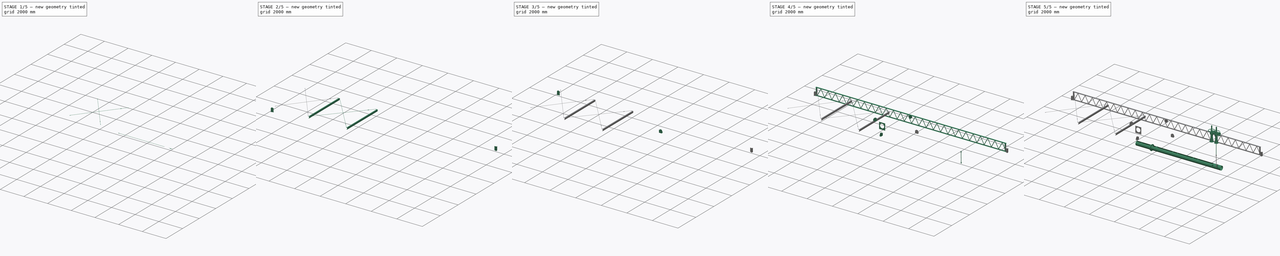
[diagram: build sequence overview — one tinted view per stage of 5, left to right]
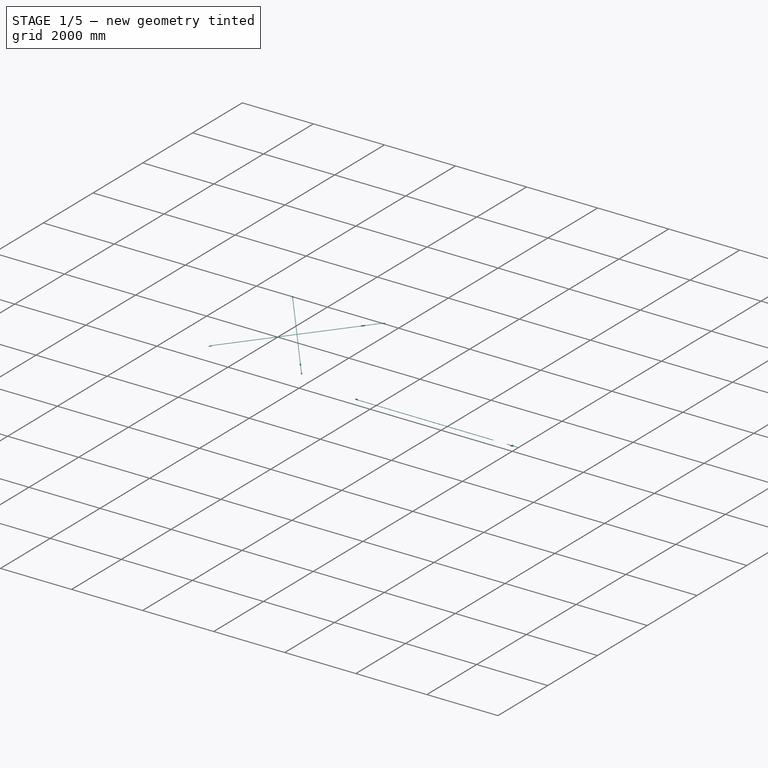
[diagram: stage 1 of 5 — iso view after this stage's code; geometry added in this stage tinted green]
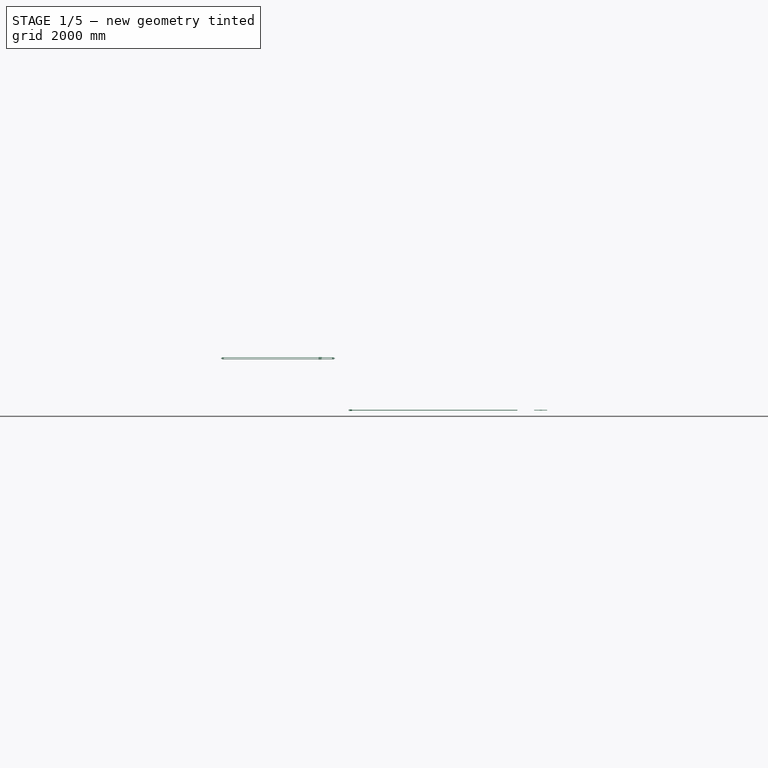
[diagram: stage 1 of 5 — front view after this stage's code; geometry added in this stage tinted green]
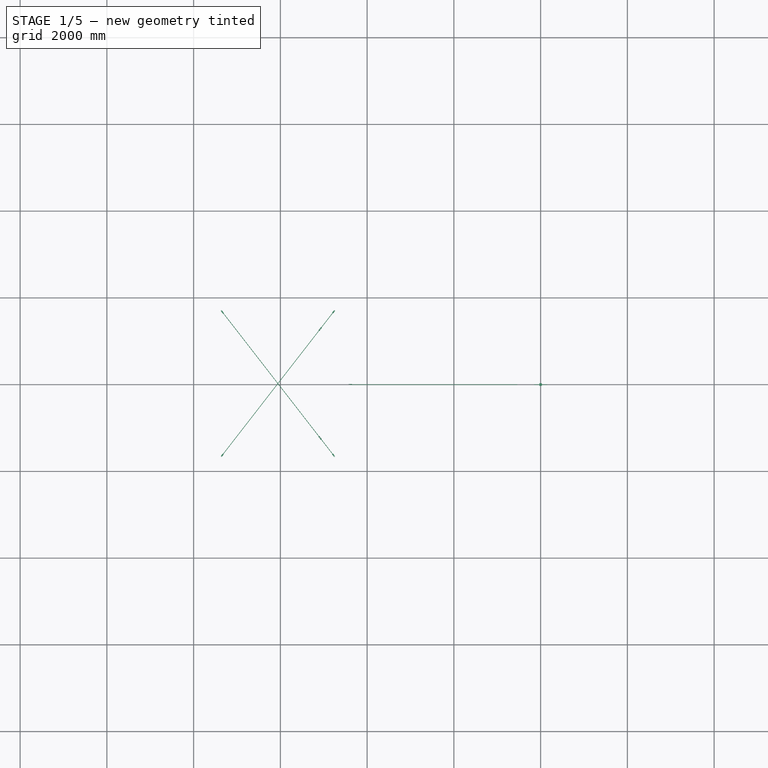
[diagram: stage 1 of 5 — top view after this stage's code; geometry added in this stage tinted green]
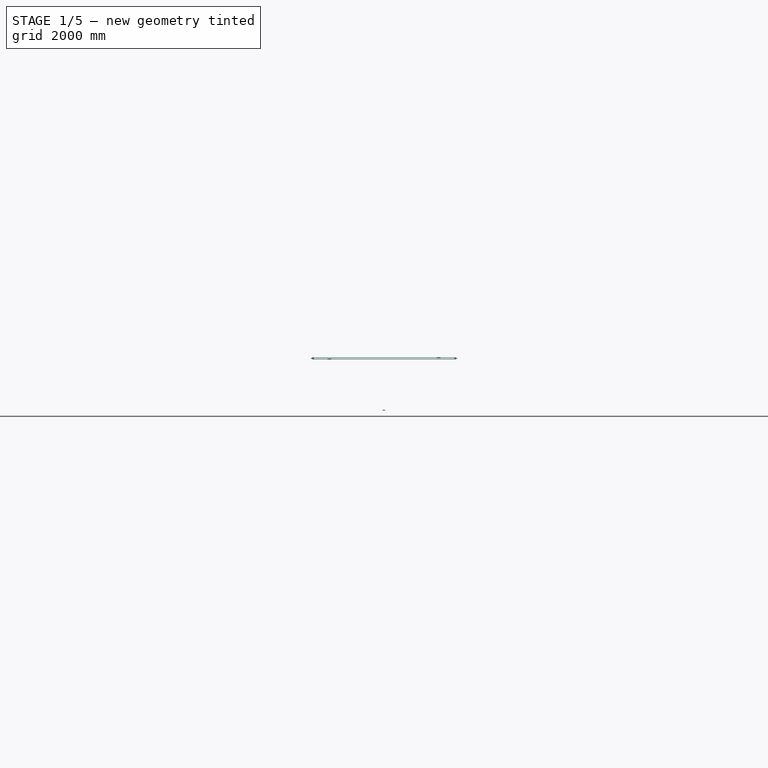
[diagram: stage 1 of 5 — right view after this stage's code; geometry added in this stage tinted green]
FCSTD DOCUMENT  (FreeCAD 0.21R33771 (Git))
Label: feedWellAssy2
License: All rights reserved
LicenseURL: https://en.wikipedia.org/wiki/All_rights_reserved
objects: Sketcher::SketchObject×36, Part::Extrusion×32, Part::FeaturePython×18, App::Part×17, Part::Cut×14, Part::Compound×13, Part::Mirroring×12, Part::Revolution×6, App::FeaturePython×6, Spreadsheet::Sheet×5, Part::Cylinder×5, Part::MultiFuse×2, Part::Feature×1, Part::Chamfer×1
note: 136 computed .brp shape members not serialized (recipe doc carries the construction recipe); baked Part::Feature solids carry a one-line shape summary decoded from their .brp

FEATURE [Sketcher::SketchObject] Sketch028
  FullyConstrained = true
  Placement = pos=(0,0,0) rot=(1,0,0;1.5708rad)
  expr: Constraints[17] = Spreadsheet003.E6
  expr: Constraints[18] = Spreadsheet003.B6 - 2 * Spreadsheet003.C6
  expr: Constraints[19] = (Spreadsheet003.B6 - 2 * Spreadsheet003.C6) / 2
  expr: Constraints[20] = Spreadsheet003.E6 / 2
  sketch-geometry (9):
    g0: LineSegment StartX=30 StartY=3 StartZ=0 EndX=30 EndY=-3 EndZ=0
    g1: LineSegment StartX=25 StartY=-8 StartZ=0 EndX=-25 EndY=-8 EndZ=0
    g2: LineSegment StartX=-30 StartY=-3 StartZ=0 EndX=-30 EndY=3 EndZ=0
    g3: LineSegment StartX=-25 StartY=8 StartZ=0 EndX=25 EndY=8 EndZ=0
    g4: GeomPoint X=0 Y=0 Z=0
    g5: ArcOfCircle CenterX=-25 CenterY=3 CenterZ=0 NormalX=0 NormalY=0 NormalZ=1 AngleXU=0 Radius=5 StartAngle=1.5708 EndAngle=3.14159
    g6: ArcOfCircle CenterX=-25 CenterY=-3 CenterZ=0 NormalX=0 NormalY=0 NormalZ=1 AngleXU=0 Radius=5 StartAngle=3.14159 EndAngle=4.71239
    g7: ArcOfCircle CenterX=25 CenterY=-3 CenterZ=0 NormalX=0 NormalY=0 NormalZ=1 AngleXU=0 Radius=5 StartAngle=4.71239 EndAngle=6.28319
    g8: ArcOfCircle CenterX=25 CenterY=3 CenterZ=0 NormalX=0 NormalY=0 NormalZ=1 AngleXU=0 Radius=5 StartAngle=-4.09e-14 EndAngle=1.5708
  constraints (21):
    c: Horizontal(g1)
    c: Horizontal(g3)
    c: Vertical(g0)
    c: Vertical(g2)
    c: Coincident(g4,g-1)
    c: Tangent(g3,g5) = 1.5708
    c: Tangent(g2,g5) = 1.5708
    c: Tangent(g1,g6) = 1.5708
    c: Tangent(g2,g6) = 1.5708
    c: Tangent(g1,g7) = 1.5708
    c: Tangent(g0,g7) = 1.5708
    c: Tangent(g0,g8) = 1.5708
    c: Tangent(g3,g8) = 1.5708
    c: Radius(g8) = 5
    c: Equal(g8,g7)
    c: Equal(g7,g6)
    c: Equal(g6,g5)
    c: DistanceY(g1,g3) = 16
    c: DistanceX(g2,g0) = 60
    c: Distance(g4,g2) = 30
    c: Distance(g4,g1) = 8
FEATURE [Part::Extrusion] Extrude025
  Base = -> Sketch028
  Dir = (0,-1,2e-16)
  DirMode = 2
  FaceMakerClass = Part::FaceMakerBullseye
  LengthFwd = 60
  LengthRev = 0
  Solid = true
  Symmetric = true
FEATURE [Sketcher::SketchObject] Sketch029
  FullyConstrained = true
  Placement = pos=(0,0,0) rot=(0.57735,0.57735,0.57735;2.0944rad)
  expr: Constraints[1] = Spreadsheet003.dia / 2
  sketch-geometry (1):
    g0: Circle CenterX=0 CenterY=0 CenterZ=0 NormalX=0 NormalY=0 NormalZ=1 AngleXU=0 Radius=6
  constraints (2):
    c: Coincident(g0,g-1)
    c: Radius(g0) = 6
FEATURE [Part::Extrusion] Extrude026
  Base = -> Sketch029
  Dir = (1,0,0)
  DirMode = 2
  FaceMakerClass = Part::FaceMakerBullseye
  LengthFwd = 300
  LengthRev = 0
  Solid = true
  Symmetric = true
FEATURE [Part::Cylinder] Cylinder003  label="rod001"
  Angle = 360
  AttacherType = Attacher::AttachEngine3D
  FirstAngle = 0
  Height = 3851.28
  Placement = pos=(-536,0,-1.37e-13) rot=(0,-1,0;1.5708rad)
  Radius = 6
  SecondAngle = 0
  expr: .Placement.Base.x = -(Spreadsheet003.dia * 3 + 500)
  expr: Height = Spreadsheet003.l1
  expr: Radius = Spreadsheet003.dia / 2
FEATURE [Part::Extrusion] Extrude027
  Base = -> Sketch025
  Dir = (0,-1,2e-16)
  DirMode = 2
  FaceMakerClass = Part::FaceMakerBullseye
  LengthFwd = 6
  LengthRev = 0
  Placement = pos=(0,9,0) rot=(0,0,1;0rad)
  Solid = true
  Symmetric = true
  expr: .Placement.Base.y = Spreadsheet003.dia / 2 + Spreadsheet003.t0 / 2
  expr: LengthFwd = Spreadsheet003.t0
FEATURE [Part::FeaturePython] Clone001  label="Extrude028"  # Draft clone (typed FeaturePython)
  AttacherType = Attacher::AttachEngine3D
  Fuse = false
  Objects = -> [Extrude027]
  Placement = pos=(-4411.28,9,0) rot=(0,1,0;3.14159rad)
  Scale = (1,1,1)
  expr: .Placement.Base.x = -Spreadsheet003.L0
  expr: .Placement.Base.y = Spreadsheet003.t0 / 2 + Spreadsheet003.dia / 2
FEATURE [Sketcher::SketchObject] Sketch030
  FullyConstrained = true
  expr: Constraints[10] = Spreadsheet004.l0
  expr: Constraints[9] = Spreadsheet004.w0
  sketch-geometry (5):
    g0: LineSegment StartX=0 StartY=0 StartZ=0 EndX=2600 EndY=0 EndZ=0
    g1: LineSegment StartX=2600 StartY=0 StartZ=0 EndX=2600 EndY=3350 EndZ=0
    g2: LineSegment StartX=2600 StartY=3350 StartZ=0 EndX=0 EndY=3350 EndZ=0
    g3: LineSegment StartX=0 StartY=3350 StartZ=0 EndX=0 EndY=0 EndZ=0
    g4: LineSegment StartX=0 StartY=0 StartZ=0 EndX=2600 EndY=3350 EndZ=0
  constraints (14):
    c: Coincident(g0,g1)
    c: Coincident(g1,g2)
    c: Coincident(g2,g3)
    c: Coincident(g3,g0)
    c: Horizontal(g0)
    c: Horizontal(g2)
    c: Vertical(g1)
    c: Vertical(g3)
    c: Coincident(g0,g-1)
    c: Distance(g2) = 2600
    c: Distance(g1) = 3350
    c: Coincident(g4,g0)
    c: Coincident(g4,g1)
    c: Angle(g0,g4) = 0.910787
FEATURE [Spreadsheet::Sheet] Spreadsheet004  label="Spreadsheet003"
  cells = A2='rodDia dia; B2(dia)=12; C2='thickness; D2(t0)=6; E2='w0; F2(w0)=2600; G2='sita; H2(sita)==atan(l0 / w0); A3='length L0; B3(L0)==(w0 ^ 2 + l0 ^ 2) ^ 0.5; C3='l1; D3(l1)==L0 - (dia * 5 + 500); E3='l0; F3(l0)=3350; B4='l; C4='l1; D4='a; E4='b; F4='c; G4='e; H4='f; I4='g; J4='h; K4='i; L4='r; A5='forkEndR; B5=80; D5=25; E5=10; F5=14; G5=16; H5=13; I5=40; J5=5; K5=13; L5=15; A6='turnBackle; B6=100; C6=20; D6=30; E6=16; F6=22; A7='forkEndL; B7=60; D7=25; E7=10; F7=13; G7=16; H7=13; I7=20; L7=15; A8=1; B8=2; C8=3; D8=4; E8=5; F8=6; G8=7; H8=8; I8=9; J8=10; K8=11; L8=12; A9='turnBackle; A10='d; B10='l; C10='l1; D10='a; E10='b; F10='c; G10='t0; A11=10; B11=75; C11=15; D11=24; E11=13; F11=17; G11=6; A12=12; B12=100; C12=20; D12=30; E12=16; F12=22; G12=6; A13=16; B13=125; C13=24; D13=36; E13=20; F13=27; G13=9; A14=20; B14=150; C14=28; D14=42; E14=23; F14=33; G14=9; A15=22; B15=175; C15=33; D15=48; E15=27; F15=37; G15=9; A16=24; B16=200; C16=38; D16=54; E16=30; F16=42; G16=12; A17=30; B17=250; C17=47; D17=66; E17=37; F17=52; G17=12; A18='forkEnd_L; A19='d; B19='l; C19='a; D19='b; E19='c; F19='e; G19='f; H19='g; I19='r; A20=10; B20=50; C20=20; D20=7; E20=10; F20=12; G20=10; H20=15; I20=12; A21=12; B21=60; C21=25; D21=10; E21=13; F21=16; G21=13; H21=20; I21=15; A22=16; B22=75; C22=30; D22=13; E22=16; F22=20; G22=16; H22=25; I22=19; A23=20; B23=90; C23=40; D23=16; E23=20; F23=24; G23=20; H23=30; I23=23; A24=22; B24=100; C24=45; D24=20; E24=23; F24=28; G24=23; H24=35; I24=27; A25=24; B25=115; C25=50; D25=23; E25=26; F25=32; G25=26; H25=40; I25=30; A26=30; B26=140; C26=65; D26=30; E26=33; F26=40; G26=33; H26=50; I26=38; A27='forkEnd_R; A28='d; B28='l; C28='a; D28='b; E28='c; F28='r; +82 more cells
FEATURE [Sketcher::SketchObject] Sketch031
  FullyConstrained = true
  Placement = pos=(0,0,0) rot=(1,0,0;1.5708rad)
  expr: Constraints[11] = Spreadsheet004.I5 + Spreadsheet004.dia * 2
  expr: Constraints[1] = Spreadsheet004.F5 / 2
  expr: Constraints[3] = Spreadsheet004.L5
  sketch-geometry (5):
    g0: Circle CenterX=0 CenterY=0 CenterZ=0 NormalX=0 NormalY=0 NormalZ=1 AngleXU=0 Radius=7
    g1: ArcOfCircle CenterX=0 CenterY=0 CenterZ=0 NormalX=0 NormalY=0 NormalZ=1 AngleXU=0 Radius=15 StartAngle=4.71239 EndAngle=7.85398
    g2: LineSegment StartX=-4.87e-14 StartY=15 StartZ=0 EndX=-64 EndY=15 EndZ=0
    g3: LineSegment StartX=-64 StartY=15 StartZ=0 EndX=-64 EndY=-15 EndZ=0
    g4: LineSegment StartX=-64 StartY=-15 StartZ=0 EndX=0 EndY=-15 EndZ=0
  constraints (12):
    c: Coincident(g0,g-1)
    c: Radius(g0) = 7
    c: Coincident(g1,g0)
    c: Radius(g1) = 15
    c: Horizontal(g2)
    c: Coincident(g2,g3)
    c: Vertical(g3)
    c: Coincident(g3,g4)
    c: Horizontal(g4)
    c: Tangent(g1,g2) = -1.5708
    c: Tangent(g1,g4) = -1.5708
    c: Distance(g2) = 64
FEATURE [Part::Cylinder] Cylinder004  label="円柱002"
  Angle = 360
  AttacherType = Attacher::AttachEngine3D
  FirstAngle = 0
  Height = 500
  Placement = pos=(-24,0,0) rot=(0,-1,0;1.5708rad)
  Radius = 6
  SecondAngle = 0
  expr: .Placement.Base.x = -Spreadsheet004.dia * 2
  expr: Radius = Spreadsheet004.dia / 2
FEATURE [Sketcher::SketchObject] Sketch032
  FullyConstrained = true
  Placement = pos=(0,0,0) rot=(1,0,0;1.5708rad)
  expr: Constraints[10] = Spreadsheet004.C6
  expr: Constraints[11] = Spreadsheet004.B6
  expr: Constraints[12] = Spreadsheet004.D6 / 2
  expr: Constraints[13] = Spreadsheet004.F6 / 2
  expr: Constraints[14] = Spreadsheet004.B6 / 2
  expr: Constraints[17] = Spreadsheet004.C6
  sketch-geometry (6):
    g0: LineSegment StartX=-50 StartY=0 StartZ=0 EndX=-50 EndY=11 EndZ=0
    g1: LineSegment StartX=-50 StartY=11 StartZ=0 EndX=-30 EndY=15 EndZ=0
    g2: LineSegment StartX=-30 StartY=15 StartZ=0 EndX=30 EndY=15 EndZ=0
    g3: LineSegment StartX=30 StartY=15 StartZ=0 EndX=50 EndY=11 EndZ=0
    g4: LineSegment StartX=50 StartY=11 StartZ=0 EndX=50 EndY=0 EndZ=0
    g5: LineSegment StartX=50 StartY=0 StartZ=0 EndX=-50 EndY=0 EndZ=0
  constraints (18):
    c: PointOnObject(g0,g-1)
    c: Vertical(g0)
    c: Coincident(g0,g1)
    c: Coincident(g1,g2)
    c: Horizontal(g2)
    c: Coincident(g2,g3)
    c: Coincident(g3,g4)
    c: PointOnObject(g4,g-1)
    c: Vertical(g4)
    c: Coincident(g4,g5)
    c: DistanceX(g2,g3) = 20
    c: DistanceX(g0,g3) = 100
    c: Distance(g1,g5) = 15
    c: Distance(g4) = 11
    c: DistanceX(g-1,g4) = 50
    c: Horizontal(g0,g3)
    c: Coincident(g5,g0)
    c: DistanceX(g0,g1) = 20
FEATURE [Part::Revolution] Revolve005
  Angle = 360
  Axis = (-1,0,0)
  AxisLink = -> Sketch032 [Edge6]
  Base = (-50,0,0)
  FaceMakerClass = Part::FaceMakerBullseye
  Solid = true
  Source = -> Sketch032
  Symmetric = false
FEATURE [Sketcher::SketchObject] Sketch033
  FullyConstrained = false
  Placement = pos=(0,0,0) rot=(0.57735,0.57735,0.57735;2.0944rad)
  expr: Constraints[16] = Spreadsheet004.F6
  expr: Constraints[17] = Spreadsheet004.F6 / 2
  sketch-geometry (8):
    g0: LineSegment StartX=-11 StartY=39.685 StartZ=0 EndX=-26 EndY=39.685 EndZ=0
    g1: LineSegment StartX=-26 StartY=39.685 StartZ=0 EndX=-26 EndY=-39.3666 EndZ=0
    g2: LineSegment StartX=-26 StartY=-39.3666 StartZ=0 EndX=-11 EndY=-39.3666 EndZ=0
    g3: LineSegment StartX=-11 StartY=-39.3666 StartZ=0 EndX=-11 EndY=39.685 EndZ=0
    g4: LineSegment StartX=11 StartY=39.685 StartZ=0 EndX=26 EndY=39.685 EndZ=0
    g5: LineSegment StartX=26 StartY=39.685 StartZ=0 EndX=26 EndY=-40.315 EndZ=0
    g6: LineSegment StartX=26 StartY=-40.315 StartZ=0 EndX=11 EndY=-40.315 EndZ=0
    g7: LineSegment StartX=11 StartY=-40.315 StartZ=0 EndX=11 EndY=39.685 EndZ=0
  constraints (22):
    c: Coincident(g0,g1)
    c: Coincident(g1,g2)
    c: Coincident(g2,g3)
    c: Coincident(g3,g0)
    c: Horizontal(g0)
    c: Horizontal(g2)
    c: Vertical(g1)
    c: Vertical(g3)
    c: Coincident(g4,g5)
    c: Coincident(g5,g6)
    c: Coincident(g6,g7)
    c: Coincident(g7,g4)
    c: Horizontal(g4)
    c: Horizontal(g6)
    c: Vertical(g5)
    c: Vertical(g7)
    c: DistanceX(g0,g4) = 22
    c: Distance(g-1,g7) = 11
    c: Distance(g5) = 80
    c: Distance(g4) = 15
    c: Distance(g0) = 15
    c: Horizontal(g0,g4)
FEATURE [Part::Extrusion] Extrude028  label="Extrude029"
  Base = -> Sketch033
  Dir = (1,0,0)
  DirMode = 2
  FaceMakerClass = Part::FaceMakerBullseye
  LengthFwd = 300
  LengthRev = 0
  Solid = true
  Symmetric = true
FEATURE [Part::Cut] Cut012
  Base = -> Revolve005
  Tool = -> Extrude028
FEATURE [Sketcher::SketchObject] Sketch034
  FullyConstrained = true
  Placement = pos=(0,0,0) rot=(1,0,0;1.5708rad)
  expr: Constraints[17] = Spreadsheet004.E6
  expr: Constraints[18] = Spreadsheet004.B6 - 2 * Spreadsheet004.C6
  expr: Constraints[19] = (Spreadsheet004.B6 - 2 * Spreadsheet004.C6) / 2
  expr: Constraints[20] = Spreadsheet004.E6 / 2
  sketch-geometry (9):
    g0: LineSegment StartX=30 StartY=3 StartZ=0 EndX=30 EndY=-3 EndZ=0
    g1: LineSegment StartX=25 StartY=-8 StartZ=0 EndX=-25 EndY=-8 EndZ=0
    g2: LineSegment StartX=-30 StartY=-3 StartZ=0 EndX=-30 EndY=3 EndZ=0
    g3: LineSegment StartX=-25 StartY=8 StartZ=0 EndX=25 EndY=8 EndZ=0
    g4: GeomPoint X=0 Y=0 Z=0
    g5: ArcOfCircle CenterX=-25 CenterY=3 CenterZ=0 NormalX=0 NormalY=0 NormalZ=1 AngleXU=0 Radius=5 StartAngle=1.5708 EndAngle=3.14159
    g6: ArcOfCircle CenterX=-25 CenterY=-3 CenterZ=0 NormalX=0 NormalY=0 NormalZ=1 AngleXU=0 Radius=5 StartAngle=3.14159 EndAngle=4.71239
    g7: ArcOfCircle CenterX=25 CenterY=-3 CenterZ=0 NormalX=0 NormalY=0 NormalZ=1 AngleXU=0 Radius=5 StartAngle=4.71239 EndAngle=6.28319
    g8: ArcOfCircle CenterX=25 CenterY=3 CenterZ=0 NormalX=0 NormalY=0 NormalZ=1 AngleXU=0 Radius=5 StartAngle=-4.09e-14 EndAngle=1.5708
  constraints (21):
    c: Horizontal(g1)
    c: Horizontal(g3)
    c: Vertical(g0)
    c: Vertical(g2)
    c: Coincident(g4,g-1)
    c: Tangent(g3,g5) = 1.5708
    c: Tangent(g2,g5) = 1.5708
    c: Tangent(g1,g6) = 1.5708
    c: Tangent(g2,g6) = 1.5708
    c: Tangent(g1,g7) = 1.5708
    c: Tangent(g0,g7) = 1.5708
    c: Tangent(g0,g8) = 1.5708
    c: Tangent(g3,g8) = 1.5708
    c: Radius(g8) = 5
    c: Equal(g8,g7)
    c: Equal(g7,g6)
    c: Equal(g6,g5)
    c: DistanceY(g1,g3) = 16
    c: DistanceX(g2,g0) = 60
    c: Distance(g4,g2) = 30
    c: Distance(g4,g1) = 8
FEATURE [Part::Extrusion] Extrude029  label="Extrude030"
  Base = -> Sketch034
  Dir = (0,-1,2e-16)
  DirMode = 2
  FaceMakerClass = Part::FaceMakerBullseye
  LengthFwd = 60
  LengthRev = 0
  Solid = true
  Symmetric = true
FEATURE [Part::Cut] Cut013
  Base = -> Cut012
  Tool = -> Extrude029
FEATURE [Sketcher::SketchObject] Sketch035
  FullyConstrained = true
  Placement = pos=(0,0,0) rot=(0.57735,0.57735,0.57735;2.0944rad)
  expr: Constraints[1] = Spreadsheet004.dia / 2
  sketch-geometry (1):
    g0: Circle CenterX=0 CenterY=0 CenterZ=0 NormalX=0 NormalY=0 NormalZ=1 AngleXU=0 Radius=6
  constraints (2):
    c: Coincident(g0,g-1)
    c: Radius(g0) = 6
FEATURE [Part::Extrusion] Extrude030  label="Extrude031"
  Base = -> Sketch035
  Dir = (1,0,0)
  DirMode = 2
  FaceMakerClass = Part::FaceMakerBullseye
  LengthFwd = 300
  LengthRev = 0
  Solid = true
  Symmetric = true
FEATURE [Part::Cut] Cut014  label="turnBackle002"
  Base = -> Cut013
  Placement = pos=(-530,0,0) rot=(0,0,1;0rad)
  Tool = -> Extrude030
  expr: .Placement.Base.x = -(Spreadsheet004.dia * 2.5 + 500)
FEATURE [Part::Cylinder] Cylinder005  label="rod004"
  Angle = 360
  AttacherType = Attacher::AttachEngine3D
  FirstAngle = 0
  Height = 3680.58
  Placement = pos=(-536,0,-1.37e-13) rot=(0,-1,0;1.5708rad)
  Radius = 6
  SecondAngle = 0
  expr: .Placement.Base.x = -(Spreadsheet004.dia * 3 + 500)
  expr: Height = Spreadsheet004.l1
  expr: Radius = Spreadsheet004.dia / 2
FEATURE [Part::Extrusion] Extrude031  label="Extrude032"
  Base = -> Sketch031
  Dir = (0,-1,2e-16)
  DirMode = 2
  FaceMakerClass = Part::FaceMakerBullseye
  LengthFwd = 6
  LengthRev = 0
  Placement = pos=(0,9,0) rot=(0,0,1;0rad)
  Solid = true
  Symmetric = true
  expr: .Placement.Base.y = Spreadsheet004.dia / 2 + Spreadsheet004.t0 / 2
  expr: LengthFwd = Spreadsheet004.t0
FEATURE [Part::FeaturePython] Clone002  label="Extrude033"  # Draft clone (typed FeaturePython)
  AttacherType = Attacher::AttachEngine3D
  Fuse = false
  Objects = -> [Extrude031]
  Placement = pos=(-4240.58,9,0) rot=(0,1,0;3.14159rad)
  Scale = (1,1,1)
  expr: .Placement.Base.x = -Spreadsheet004.L0
  expr: .Placement.Base.y = Spreadsheet004.t0 / 2 + Spreadsheet004.dia / 2
FEATURE [Part::Compound] Compound010
  Links = -> [Cylinder004,Extrude031,Cut014,Cylinder005,Clone002]
  Placement = pos=(0,0,0) rot=(1,0,0;1.5708rad)
FEATURE [App::Part] Part015  label="Part008"
  Group = -> [Extrude028,Extrude029,Clone002,Cylinder004,Revolve005,Sketch031,Sketch032,Sketch033,Cut013,Cut014,Cut012,Sketch034,Sketch035,Extrude030,Extrude031,Cylinder005,Compound010]
  Origin = -> Origin015
  Placement = pos=(0,0,0) rot=(0,0,1;4.05238rad)
  expr: .Placement.Rotation.Angle = 180 ° + Spreadsheet004.sita
FEATURE [Part::Mirroring] Mirror014  label="Part (mirrored)001"
  Base = (-100,0,0)
  Normal = (0,0,1)
  Placement = pos=(0,3350,30) rot=(0,0,-1;1.82157rad)
  Source = -> Part015
  expr: .Placement.Base.y = Spreadsheet004.l0
  expr: .Placement.Base.z = Spreadsheet004.t0 * 2 + Spreadsheet004.dia + 6
  expr: .Placement.Rotation.Angle = Spreadsheet004.sita * 2
FEATURE [App::Part] Part012  label="TurnBackleC"
  Group = -> [Spreadsheet003,Sketch024,Part013,Mirror013,Compound011]
  Origin = -> Origin012
  Placement = pos=(1768.77,-1672.49,1181.14) rot=(0,0,1;0rad)
FEATURE [Part::Compound] Compound012
  Links = -> [Mirror014,Part015]
FEATURE [Part::Mirroring] Mirror016  label="TurnBackleC001 (mirrored)"
  Base = (0,0,0)
  Normal = (1,0,0)
  Source = -> Part014
FEATURE [App::Part] Part009  label="support"
  Group = -> [Part010,Mirror008,Extrude023,Mirror004,Sketch023,Mirror009,Mirror010,Compound007,AngleSteel003,Mirror011,ChannelSteel,Array003,Mirror012,Part012,Mirror015,Part014,Mirror016]
  Origin = -> Origin009
  Placement = pos=(0,0,-200) rot=(0,0,1;0rad)
FEATURE [App::Part] Part011  label="feedWell"
  Group = -> [Part009,Part008,Spreadsheet001,Spreadsheet002]
  Origin = -> Origin011
FEATURE [App::Part] Part016
  Group = -> [Part011,Part002]
  Origin = -> Origin016
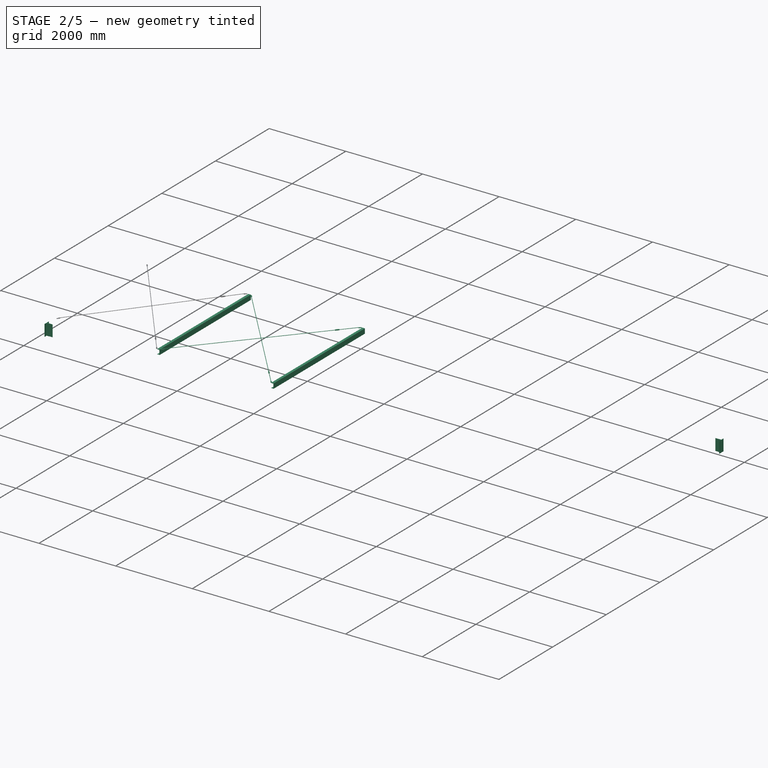
[diagram: stage 2 of 5 — iso view after this stage's code; geometry added in this stage tinted green]
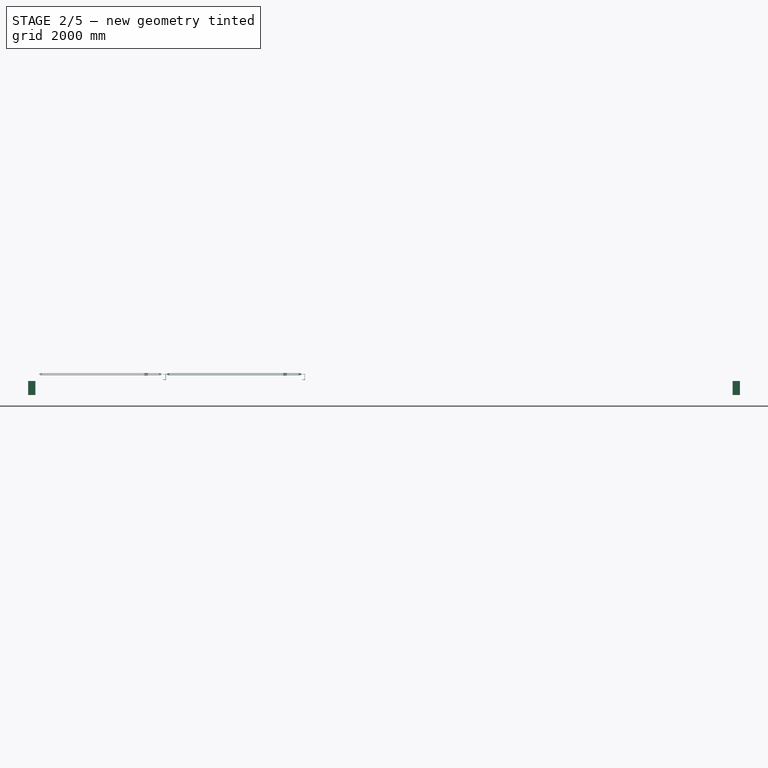
[diagram: stage 2 of 5 — front view after this stage's code; geometry added in this stage tinted green]
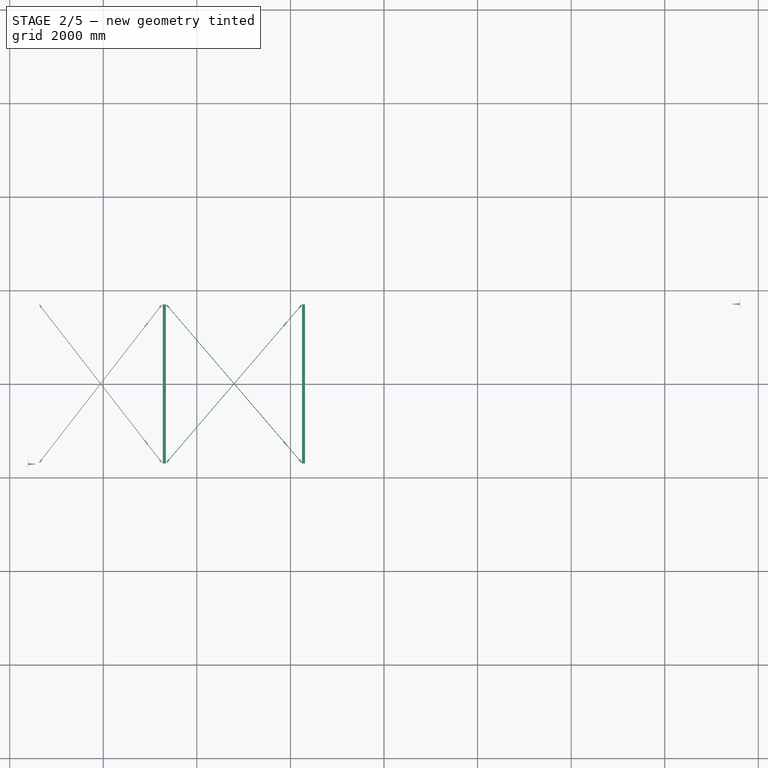
[diagram: stage 2 of 5 — top view after this stage's code; geometry added in this stage tinted green]
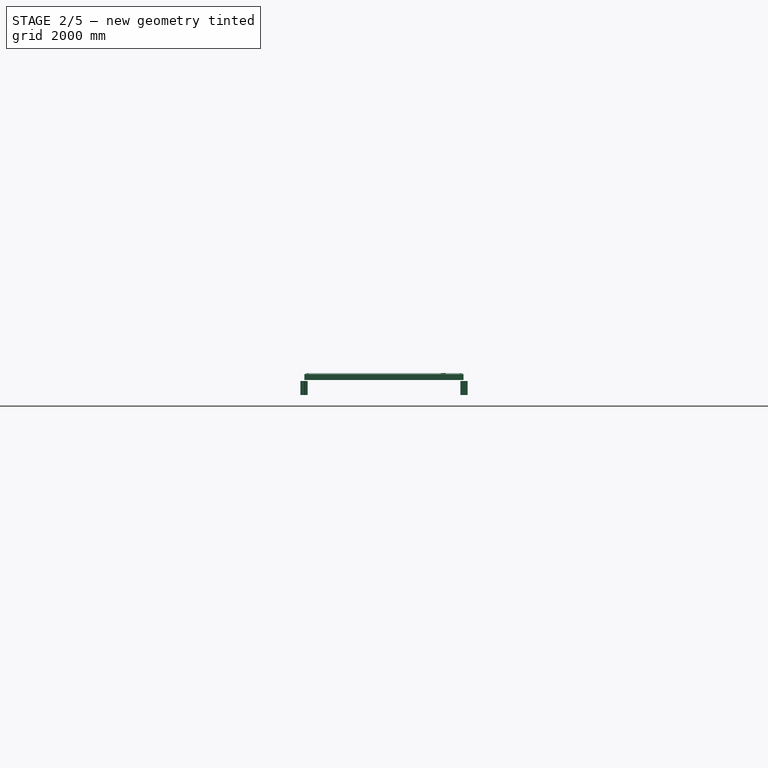
[diagram: stage 2 of 5 — right view after this stage's code; geometry added in this stage tinted green]
FEATURE [Sketcher::SketchObject] Sketch023
  FullyConstrained = true
  Placement = pos=(0,0,0) rot=(1,0,0;1.5708rad)
  sketch-geometry (4):
    g0: LineSegment StartX=0 StartY=0 StartZ=0 EndX=150 EndY=0 EndZ=0
    g1: LineSegment StartX=150 StartY=0 StartZ=0 EndX=150 EndY=300 EndZ=0
    g2: LineSegment StartX=150 StartY=300 StartZ=0 EndX=0 EndY=300 EndZ=0
    g3: LineSegment StartX=0 StartY=300 StartZ=0 EndX=0 EndY=0 EndZ=0
  constraints (11):
    c: Coincident(g0,g1)
    c: Coincident(g1,g2)
    c: Coincident(g2,g3)
    c: Coincident(g3,g0)
    c: Horizontal(g0)
    c: Horizontal(g2)
    c: Vertical(g1)
    c: Vertical(g3)
    c: Coincident(g0,g-1)
    c: DistanceX(g2,g2) = 150
    c: DistanceY(g1,g1) = 300
FEATURE [Part::Extrusion] Extrude023
  Base = -> Sketch023
  Dir = (0,-1,-3e-16)
  DirMode = 2
  FaceMakerClass = Part::FaceMakerBullseye
  LengthFwd = 6
  LengthRev = 0
  Solid = true
  Symmetric = true
FEATURE [Part::FeaturePython] AngleSteel003  # WARN: FeaturePython — macro-defined, semantics opaque (R4)
  A = 75
  B = 75
  L = 300
  Placement = pos=(117.5,40.5,0) rot=(0,0,1;3.14159rad)
  Solid = true
  g0 = 7.85
  mass = 2.05506
  size = 10
  standard = SS_Equal
  t = 6
FEATURE [Part::Mirroring] Mirror004  label="AngleSteel003 (mirrored)"
  Base = (200,0,0)
  Normal = (0,1,0)
  Source = -> AngleSteel003
FEATURE [Part::Compound] Compound007  label="gusset001"
  Links = -> [Extrude023,Mirror004,AngleSteel003]
  Placement = pos=(7450,-1710,750) rot=(0,0,1;0rad)
  expr: .Placement.Base.x = Spreadsheet001.D0 / 2 - 300
  expr: .Placement.Base.y = -<<Spreadsheet_feedWell>>.dia / 2 - 160
  expr: .Placement.Base.z = Spreadsheet001.h1 - 450
FEATURE [App::Part] Part008  label="centerWell001"
  Group = -> [Chamfer,Sketch014,Sketch019,Sketch018,Sketch017,Compound005,Compound006,Revolve001,Revolve002,Revolve003,Extrude011,Extrude017,Extrude013,Extrude003,Extrude010,Extrude012,Extrude016,Extrude018,Sketch011,Sketch003,Sketch010,Sketch012,Sketch013,AngleSteel,AngleSteel001,Cut007,Fusion,Cut005,Cut004,Cut006,Array002,Part007,Compound004]
  Origin = -> Origin008
  Placement = pos=(0,0,0) rot=(0,0,1;1.5708rad)
FEATURE [Part::Mirroring] Mirror009  label="gusset001 (mirrored)"
  Base = (0,0,0)
  Normal = (1,0,0)
  Source = -> Compound007
FEATURE [Part::Mirroring] Mirror011  label="gusset001 (mirrored)001"
  Base = (0,0,0)
  Normal = (0,1,0)
  Source = -> Compound007
FEATURE [Part::FeaturePython] ChannelSteel  # WARN: FeaturePython — macro-defined, semantics opaque (R4)
  B = 65
  H = 125
  L = 3400
  Placement = pos=(1720,-1701.5,3.61e-13) rot=(-1,0,0;1.5708rad)
  Solid = true
  g0 = 7.85
  mass = 41.0702
  size = 2
  standard = SS
  t1 = 6
  t2 = 8
  expr: .Placement.Base.x = Spreadsheet001.dia / 2 + 170
  expr: .Placement.Base.y = -Spreadsheet001.dia / 2 - 101.5 - 50
  expr: L = Spreadsheet001.dia + 300
FEATURE [Part::FeaturePython] Array003  # Draft array (typed FeaturePython)
  AlwaysSyncPlacement = false
  Angle = 360
  ArrayType = 0
  Axis = (0,0,1)
  Base = -> ChannelSteel
  Center = (0,0,0)
  Count = 2
  ExpandArray = false
  Fuse = false
  IntervalAxis = (0,0,0)
  IntervalX = (2975,0,0)
  IntervalY = (0,100,0)
  IntervalZ = (0,0,100)
  NumberCircles = 3
  NumberPolar = 5
  NumberX = 2
  NumberY = 1
  NumberZ = 1
  Placement = pos=(0,-0.000129987,1135.41) rot=(0,0,1;0rad)
  PlacementList = 2 placements: [(1720,-1701.5,3.61e-13),(4695,-1701.5,3.61e-13)]
  RadialDistance = 50
  ScaleList = (2) [(1,1,1),(1,1,1)]
  Symmetry = 1
  TangentialDistance = 25
  expr: .IntervalX.x = (<<Spreadsheet_support>>.L0 / 2 - <<Spreadsheet_feedWell>>.dia / 2) / 2
FEATURE [Part::Mirroring] Mirror012  label="Array002 (mirrored)"
  Base = (0,0,0)
  Normal = (1,0,0)
  Source = -> Array003
FEATURE [Sketcher::SketchObject] Sketch024
  FullyConstrained = true
  expr: Constraints[10] = Spreadsheet003.l0
  expr: Constraints[9] = Spreadsheet003.w0
  sketch-geometry (5):
    g0: LineSegment StartX=0 StartY=0 StartZ=0 EndX=2870 EndY=0 EndZ=0
    g1: LineSegment StartX=2870 StartY=0 StartZ=0 EndX=2870 EndY=3350 EndZ=0
    g2: LineSegment StartX=2870 StartY=3350 StartZ=0 EndX=0 EndY=3350 EndZ=0
    g3: LineSegment StartX=0 StartY=3350 StartZ=0 EndX=0 EndY=0 EndZ=0
    g4: LineSegment StartX=0 StartY=0 StartZ=0 EndX=2870 EndY=3350 EndZ=0
  constraints (14):
    c: Coincident(g0,g1)
    c: Coincident(g1,g2)
    c: Coincident(g2,g3)
    c: Coincident(g3,g0)
    c: Horizontal(g0)
    c: Horizontal(g2)
    c: Vertical(g1)
    c: Vertical(g3)
    c: Coincident(g0,g-1)
    c: Distance(g2) = 2870
    c: Distance(g1) = 3350
    c: Coincident(g4,g0)
    c: Coincident(g4,g1)
    c: Angle(g0,g4) = 0.862416
FEATURE [Spreadsheet::Sheet] Spreadsheet003  label="Spreadsheet001"
  cells = A2='rodDia dia; B2(dia)=12; C2='thickness; D2(t0)=6; E2='w0; F2(w0)=2870; G2='sita; H2(sita)==atan(l0 / w0); A3='length L0; B3(L0)==(w0 ^ 2 + l0 ^ 2) ^ 0.5; C3='l1; D3(l1)==L0 - (dia * 5 + 500); E3='l0; F3(l0)=3350; B4='l; C4='l1; D4='a; E4='b; F4='c; G4='e; H4='f; I4='g; J4='h; K4='i; L4='r; A5='forkEndR; B5=80; D5=25; E5=10; F5=14; G5=16; H5=13; I5=40; J5=5; K5=13; L5=15; A6='turnBackle; B6=100; C6=20; D6=30; E6=16; F6=22; A7='forkEndL; B7=60; D7=25; E7=10; F7=13; G7=16; H7=13; I7=20; L7=15; A8=1; B8=2; C8=3; D8=4; E8=5; F8=6; G8=7; H8=8; I8=9; J8=10; K8=11; L8=12; A9='turnBackle; A10='d; B10='l; C10='l1; D10='a; E10='b; F10='c; G10='t0; A11=10; B11=75; C11=15; D11=24; E11=13; F11=17; G11=6; A12=12; B12=100; C12=20; D12=30; E12=16; F12=22; G12=6; A13=16; B13=125; C13=24; D13=36; E13=20; F13=27; G13=9; A14=20; B14=150; C14=28; D14=42; E14=23; F14=33; G14=9; A15=22; B15=175; C15=33; D15=48; E15=27; F15=37; G15=9; A16=24; B16=200; C16=38; D16=54; E16=30; F16=42; G16=12; A17=30; B17=250; C17=47; D17=66; E17=37; F17=52; G17=12; A18='forkEnd_L; A19='d; B19='l; C19='a; D19='b; E19='c; F19='e; G19='f; H19='g; I19='r; A20=10; B20=50; C20=20; D20=7; E20=10; F20=12; G20=10; H20=15; I20=12; A21=12; B21=60; C21=25; D21=10; E21=13; F21=16; G21=13; H21=20; I21=15; A22=16; B22=75; C22=30; D22=13; E22=16; F22=20; G22=16; H22=25; I22=19; A23=20; B23=90; C23=40; D23=16; E23=20; F23=24; G23=20; H23=30; I23=23; A24=22; B24=100; C24=45; D24=20; E24=23; F24=28; G24=23; H24=35; I24=27; A25=24; B25=115; C25=50; D25=23; E25=26; F25=32; G25=26; H25=40; I25=30; A26=30; B26=140; C26=65; D26=30; E26=33; F26=40; G26=33; H26=50; I26=38; A27='forkEnd_R; A28='d; B28='l; C28='a; D28='b; E28='c; F28='r; +82 more cells
FEATURE [Sketcher::SketchObject] Sketch025
  FullyConstrained = true
  Placement = pos=(0,0,0) rot=(1,0,0;1.5708rad)
  expr: Constraints[11] = Spreadsheet003.I5 + Spreadsheet003.dia * 2
  expr: Constraints[1] = Spreadsheet003.F5 / 2
  expr: Constraints[3] = Spreadsheet003.L5
  sketch-geometry (5):
    g0: Circle CenterX=0 CenterY=0 CenterZ=0 NormalX=0 NormalY=0 NormalZ=1 AngleXU=0 Radius=7
    g1: ArcOfCircle CenterX=0 CenterY=0 CenterZ=0 NormalX=0 NormalY=0 NormalZ=1 AngleXU=0 Radius=15 StartAngle=4.71239 EndAngle=7.85398
    g2: LineSegment StartX=-4.87e-14 StartY=15 StartZ=0 EndX=-64 EndY=15 EndZ=0
    g3: LineSegment StartX=-64 StartY=15 StartZ=0 EndX=-64 EndY=-15 EndZ=0
    g4: LineSegment StartX=-64 StartY=-15 StartZ=0 EndX=0 EndY=-15 EndZ=0
  constraints (12):
    c: Coincident(g0,g-1)
    c: Radius(g0) = 7
    c: Coincident(g1,g0)
    c: Radius(g1) = 15
    c: Horizontal(g2)
    c: Coincident(g2,g3)
    c: Vertical(g3)
    c: Coincident(g3,g4)
    c: Horizontal(g4)
    c: Tangent(g1,g2) = -1.5708
    c: Tangent(g1,g4) = -1.5708
    c: Distance(g2) = 64
FEATURE [Part::Cylinder] Cylinder002  label="円柱001"
  Angle = 360
  AttacherType = Attacher::AttachEngine3D
  FirstAngle = 0
  Height = 500
  Placement = pos=(-24,0,0) rot=(0,-1,0;1.5708rad)
  Radius = 6
  SecondAngle = 0
  expr: .Placement.Base.x = -Spreadsheet003.dia * 2
  expr: Radius = Spreadsheet003.dia / 2
FEATURE [Sketcher::SketchObject] Sketch026
  FullyConstrained = true
  Placement = pos=(0,0,0) rot=(1,0,0;1.5708rad)
  expr: Constraints[10] = Spreadsheet003.C6
  expr: Constraints[11] = Spreadsheet003.B6
  expr: Constraints[12] = Spreadsheet003.D6 / 2
  expr: Constraints[13] = Spreadsheet003.F6 / 2
  expr: Constraints[14] = Spreadsheet003.B6 / 2
  expr: Constraints[17] = Spreadsheet003.C6
  sketch-geometry (6):
    g0: LineSegment StartX=-50 StartY=0 StartZ=0 EndX=-50 EndY=11 EndZ=0
    g1: LineSegment StartX=-50 StartY=11 StartZ=0 EndX=-30 EndY=15 EndZ=0
    g2: LineSegment StartX=-30 StartY=15 StartZ=0 EndX=30 EndY=15 EndZ=0
    g3: LineSegment StartX=30 StartY=15 StartZ=0 EndX=50 EndY=11 EndZ=0
    g4: LineSegment StartX=50 StartY=11 StartZ=0 EndX=50 EndY=0 EndZ=0
    g5: LineSegment StartX=50 StartY=0 StartZ=0 EndX=-50 EndY=0 EndZ=0
  constraints (18):
    c: PointOnObject(g0,g-1)
    c: Vertical(g0)
    c: Coincident(g0,g1)
    c: Coincident(g1,g2)
    c: Horizontal(g2)
    c: Coincident(g2,g3)
    c: Coincident(g3,g4)
    c: PointOnObject(g4,g-1)
    c: Vertical(g4)
    c: Coincident(g4,g5)
    c: DistanceX(g2,g3) = 20
    c: DistanceX(g0,g3) = 100
    c: Distance(g1,g5) = 15
    c: Distance(g4) = 11
    c: DistanceX(g-1,g4) = 50
    c: Horizontal(g0,g3)
    c: Coincident(g5,g0)
    c: DistanceX(g0,g1) = 20
FEATURE [Part::Revolution] Revolve004
  Angle = 360
  Axis = (-1,0,0)
  AxisLink = -> Sketch026 [Edge6]
  Base = (-50,0,0)
  FaceMakerClass = Part::FaceMakerBullseye
  Solid = true
  Source = -> Sketch026
  Symmetric = false
FEATURE [Sketcher::SketchObject] Sketch027
  FullyConstrained = false
  Placement = pos=(0,0,0) rot=(0.57735,0.57735,0.57735;2.0944rad)
  expr: Constraints[16] = Spreadsheet003.F6
  expr: Constraints[17] = Spreadsheet003.F6 / 2
  sketch-geometry (8):
    g0: LineSegment StartX=-11 StartY=39.685 StartZ=0 EndX=-26 EndY=39.685 EndZ=0
    g1: LineSegment StartX=-26 StartY=39.685 StartZ=0 EndX=-26 EndY=-39.3666 EndZ=0
    g2: LineSegment StartX=-26 StartY=-39.3666 StartZ=0 EndX=-11 EndY=-39.3666 EndZ=0
    g3: LineSegment StartX=-11 StartY=-39.3666 StartZ=0 EndX=-11 EndY=39.685 EndZ=0
    g4: LineSegment StartX=11 StartY=39.685 StartZ=0 EndX=26 EndY=39.685 EndZ=0
    g5: LineSegment StartX=26 StartY=39.685 StartZ=0 EndX=26 EndY=-40.315 EndZ=0
    g6: LineSegment StartX=26 StartY=-40.315 StartZ=0 EndX=11 EndY=-40.315 EndZ=0
    g7: LineSegment StartX=11 StartY=-40.315 StartZ=0 EndX=11 EndY=39.685 EndZ=0
  constraints (22):
    c: Coincident(g0,g1)
    c: Coincident(g1,g2)
    c: Coincident(g2,g3)
    c: Coincident(g3,g0)
    c: Horizontal(g0)
    c: Horizontal(g2)
    c: Vertical(g1)
    c: Vertical(g3)
    c: Coincident(g4,g5)
    c: Coincident(g5,g6)
    c: Coincident(g6,g7)
    c: Coincident(g7,g4)
    c: Horizontal(g4)
    c: Horizontal(g6)
    c: Vertical(g5)
    c: Vertical(g7)
    c: DistanceX(g0,g4) = 22
    c: Distance(g-1,g7) = 11
    c: Distance(g5) = 80
    c: Distance(g4) = 15
    c: Distance(g0) = 15
    c: Horizontal(g0,g4)
FEATURE [Part::Extrusion] Extrude024
  Base = -> Sketch027
  Dir = (1,0,0)
  DirMode = 2
  FaceMakerClass = Part::FaceMakerBullseye
  LengthFwd = 300
  LengthRev = 0
  Solid = true
  Symmetric = true
FEATURE [Part::Cut] Cut009
  Base = -> Revolve004
  Tool = -> Extrude024
FEATURE [Part::Cut] Cut010
  Base = -> Cut009
  Tool = -> Extrude025
FEATURE [Part::Cut] Cut011  label="turnBackle001"
  Base = -> Cut010
  Placement = pos=(-530,0,0) rot=(0,0,1;0rad)
  Tool = -> Extrude026
  expr: .Placement.Base.x = -(Spreadsheet003.dia * 2.5 + 500)
FEATURE [Part::Compound] Compound009
  Links = -> [Cylinder002,Extrude027,Cut011,Cylinder003,Clone001]
  Placement = pos=(0,0,0) rot=(1,0,0;1.5708rad)
FEATURE [App::Part] Part013  label="Part"
  Group = -> [Extrude024,Extrude025,Clone001,Cylinder002,Revolve004,Sketch025,Sketch026,Sketch027,Cut010,Cut011,Cut009,Sketch028,Sketch029,Extrude026,Extrude027,Cylinder003,Compound009]
  Origin = -> Origin013
  Placement = pos=(0,0,0) rot=(0,0,1;4.00401rad)
  expr: .Placement.Rotation.Angle = 180 ° + Spreadsheet003.sita
FEATURE [Part::Mirroring] Mirror013  label="Part (mirrored)"
  Base = (-100,0,0)
  Normal = (0,0,1)
  Placement = pos=(0,3350,30) rot=(0,0,-1;1.72483rad)
  Source = -> Part013
  expr: .Placement.Base.y = Spreadsheet003.l0
  expr: .Placement.Base.z = Spreadsheet003.t0 * 2 + Spreadsheet003.dia + 6
  expr: .Placement.Rotation.Angle = Spreadsheet003.sita * 2
FEATURE [Part::Compound] Compound011
  Links = -> [Mirror013,Part013]
FEATURE [App::Part] Part014  label="TurnBackleC001"
  Group = -> [Spreadsheet004,Sketch030,Part015,Mirror014,Compound012]
  Origin = -> Origin014
  Placement = pos=(4756.67,-1672.28,1180.95) rot=(0,0,1;0rad)
FEATURE [Part::Mirroring] Mirror015  label="TurnBackleC (mirrored)"
  Base = (0,0,0)
  Normal = (1,0,0)
  Source = -> Part012
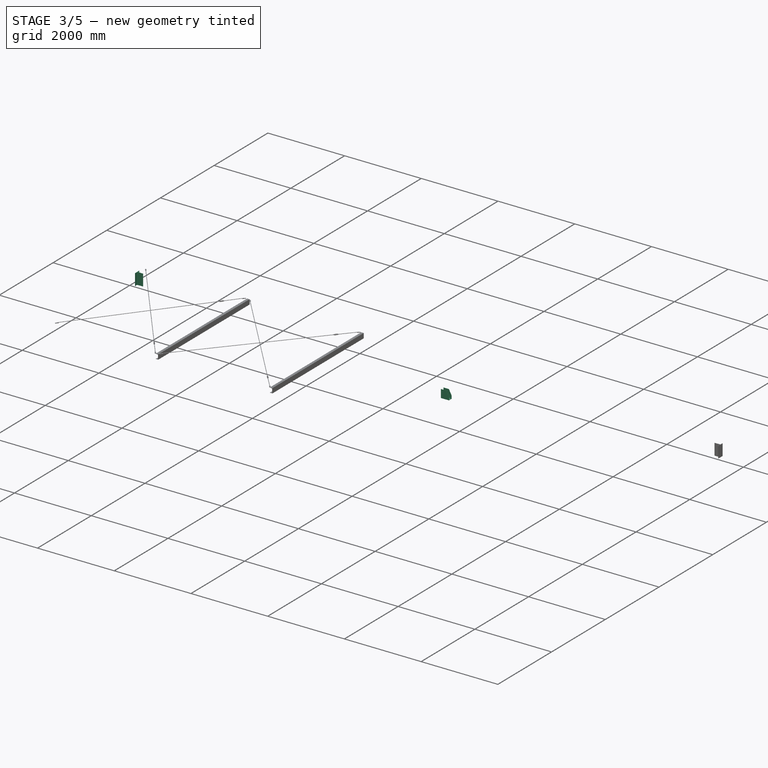
[diagram: stage 3 of 5 — iso view after this stage's code; geometry added in this stage tinted green]
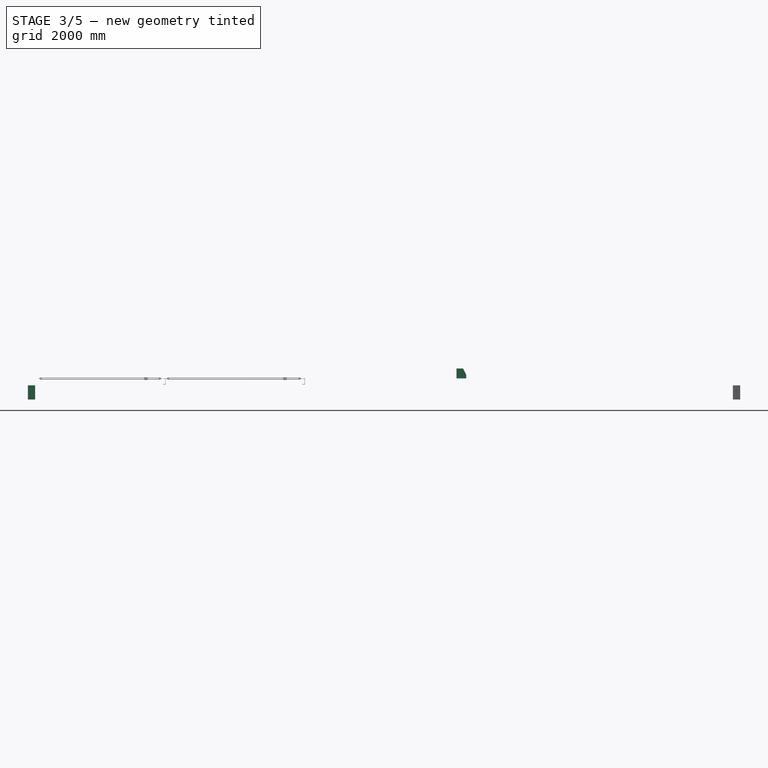
[diagram: stage 3 of 5 — front view after this stage's code; geometry added in this stage tinted green]
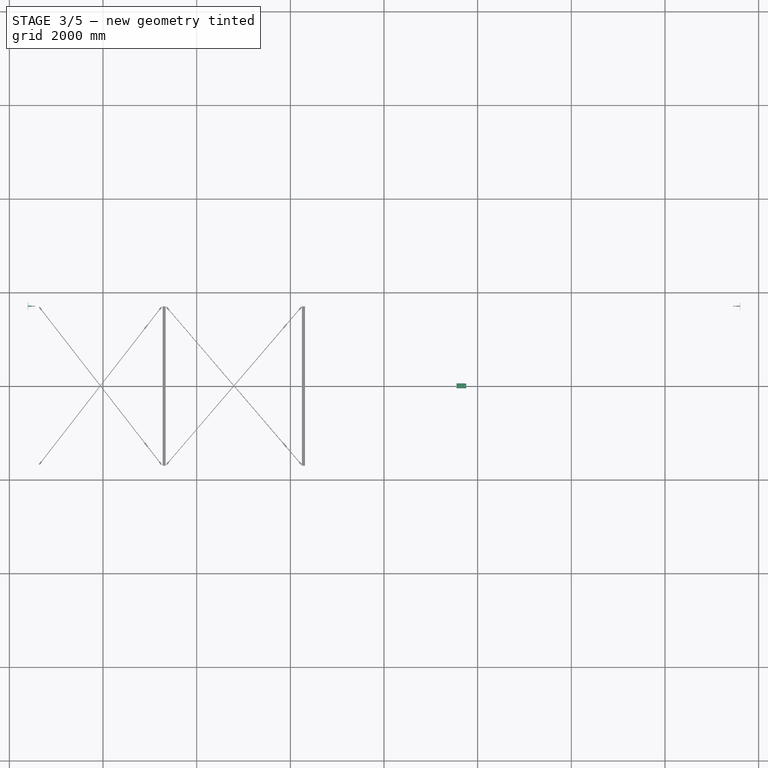
[diagram: stage 3 of 5 — top view after this stage's code; geometry added in this stage tinted green]
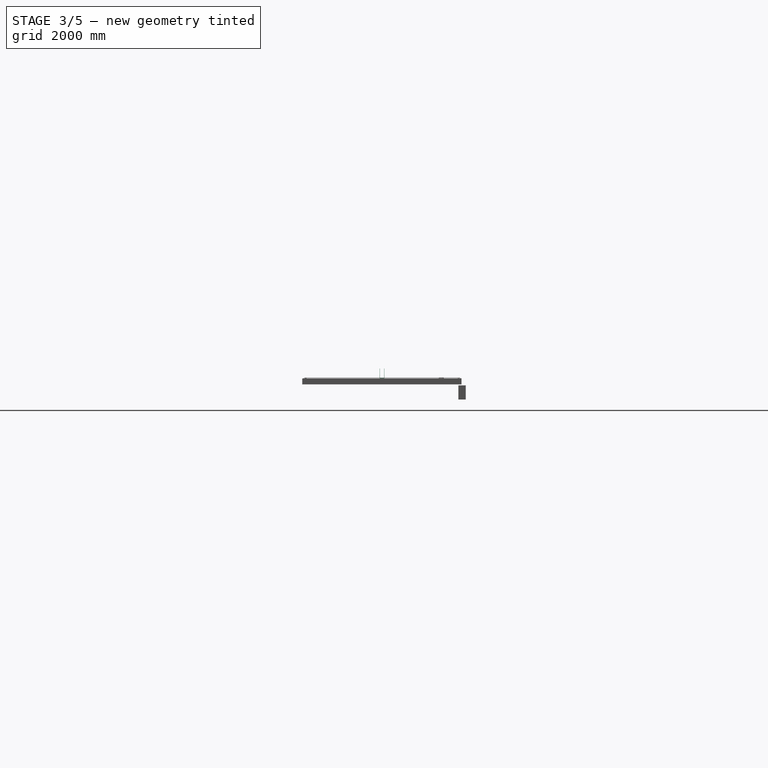
[diagram: stage 3 of 5 — right view after this stage's code; geometry added in this stage tinted green]
FEATURE [App::FeaturePython] axisCoincident_001  label="axisCoincident_001__rod003"  # a2plus constraint (typed FeaturePython)
  Object1 = _________001_001
  Object2 = Compound002
  ParentTreeObject = -> _________001_001
  SubElement1 = Face72
  SubElement2 = Edge1
  Suppressed = false
  Type = axial
  directionConstraint = 1
  lockRotation = false
FEATURE [App::FeaturePython] axisCoincident_001_mirror  label="axisCoincident_001__開閉台001_001"  # a2plus constraint (typed FeaturePython)
  Object1 = _________001_001
  Object2 = Compound002
  ParentTreeObject = -> Compound002
  SubElement1 = Face72
  SubElement2 = Edge1
  Suppressed = false
  Type = axial
  directionConstraint = 1
  lockRotation = false
FEATURE [App::FeaturePython] circularEdge_001  label="circularEdge_001__rod003"  # a2plus constraint (typed FeaturePython)
  Object1 = Compound
  Object2 = Compound002
  ParentTreeObject = -> Compound
  SubElement1 = Edge33
  SubElement2 = Edge7
  Suppressed = false
  Type = circularEdge
  directionConstraint = 0
  lockRotation = false
  offset = 0
FEATURE [App::FeaturePython] circularEdge_001_mirror  label="circularEdge_001__Compound"  # a2plus constraint (typed FeaturePython)
  Object1 = Compound
  Object2 = Compound002
  ParentTreeObject = -> Compound002
  SubElement1 = Edge33
  SubElement2 = Edge7
  Suppressed = false
  Type = circularEdge
  directionConstraint = 0
  lockRotation = false
  offset = 0
FEATURE [App::FeaturePython] axisCoincident_002  label="axisCoincident_002__pipeA"  # a2plus constraint (typed FeaturePython)
  Object1 = Compound
  Object2 = pipe001_001
  ParentTreeObject = -> Compound
  SubElement1 = Edge26
  SubElement2 = Edge22
  Suppressed = false
  Type = axial
  directionConstraint = 1
  lockRotation = false
FEATURE [App::Part] Part002  label="pipeSkimmer"
  Group = -> [Part001,Part,Spreadsheet,Part004,Part005,Compound001,Part006,Compound002,Compound003,Compound,_________001_001,pipe001_001,circularEdge_001_mirror,axisCoincident_001_mirror,axisCoincident_002,circularEdge_001]
  Origin = -> Origin002
  Placement = pos=(374,0,0) rot=(0,0,1;0rad)
FEATURE [App::FeaturePython] axisCoincident_002_mirror  label="axisCoincident_002__Compound"  # a2plus constraint (typed FeaturePython)
  Object1 = Compound
  Object2 = pipe001_001
  ParentTreeObject = -> pipe001_001
  SubElement1 = Edge26
  SubElement2 = Edge22
  Suppressed = false
  Type = axial
  directionConstraint = 1
  lockRotation = false
FEATURE [Sketcher::SketchObject] Sketch010
  FullyConstrained = true
  Placement = pos=(0,0,0) rot=(1,0,0;1.5708rad)
  expr: Constraints[11] = Spreadsheet001.dia / 2
  expr: Constraints[9] = Spreadsheet001.h0
  sketch-geometry (4):
    g0: LineSegment StartX=1545 StartY=0 StartZ=0 EndX=1550 EndY=0 EndZ=0
    g1: LineSegment StartX=1550 StartY=0 StartZ=0 EndX=1550 EndY=2100 EndZ=0
    g2: LineSegment StartX=1550 StartY=2100 StartZ=0 EndX=1545 EndY=2100 EndZ=0
    g3: LineSegment StartX=1545 StartY=2100 StartZ=0 EndX=1545 EndY=0 EndZ=0
  constraints (12):
    c: Coincident(g0,g1)
    c: Coincident(g1,g2)
    c: Coincident(g2,g3)
    c: Coincident(g3,g0)
    c: Horizontal(g0)
    c: Horizontal(g2)
    c: Vertical(g1)
    c: Vertical(g3)
    c: DistanceX(g2,g2) = 5
    c: DistanceY(g1,g1) = 2100
    c: PointOnObject(g0,g-1)
    c: DistanceX(g-1,g0) = 1550
FEATURE [Part::Revolution] Revolve001
  Angle = 360
  Axis = (0,0,1)
  Base = (0,0,0)
  FaceMakerClass = Part::FaceMakerBullseye
  Solid = true
  Source = -> Sketch010
  Symmetric = false
FEATURE [Part::FeaturePython] AngleSteel  # WARN: FeaturePython — macro-defined, semantics opaque (R4)
  A = 75
  B = 75
  L = 1000
  Placement = pos=(1550,0,0) rot=(0,0,1;0rad)
  Solid = false
  g0 = 7.85
  mass = 0
  size = 10
  standard = SS_Equal
  t = 6
  expr: .Placement.Base.x = Spreadsheet001.dia / 2
FEATURE [Part::Revolution] Revolve002
  Angle = 360
  Axis = (0,0,1)
  Base = (0,0,0)
  FaceMakerClass = Part::FaceMakerBullseye
  Solid = false
  Source = -> AngleSteel
  Symmetric = false
FEATURE [Part::FeaturePython] AngleSteel001  # WARN: FeaturePython — macro-defined, semantics opaque (R4)
  A = 75
  B = 75
  L = 1000
  Placement = pos=(1550,0,2100) rot=(0,1,0;1.5708rad)
  Solid = false
  g0 = 7.85
  mass = 0
  size = 10
  standard = SS_Equal
  t = 6
  expr: .Placement.Base.x = Spreadsheet001.dia / 2
  expr: .Placement.Base.z = Spreadsheet001.h0
FEATURE [Part::Revolution] Revolve003
  Angle = 360
  Axis = (0,0,1)
  Base = (0,0,0)
  FaceMakerClass = Part::FaceMakerBullseye
  Solid = false
  Source = -> AngleSteel001
  Symmetric = false
FEATURE [Sketcher::SketchObject] Sketch011
  ExternalGeometry = -> [Revolve003]
  FullyConstrained = true
  Placement = pos=(0,0,0) rot=(1,0,0;1.5708rad)
  sketch-geometry (4):
    g0: LineSegment StartX=-275 StartY=1580 StartZ=0 EndX=275 EndY=1580 EndZ=0
    g1: LineSegment StartX=275 StartY=1580 StartZ=0 EndX=275 EndY=2100 EndZ=0
    g2: LineSegment StartX=275 StartY=2100 StartZ=0 EndX=-275 EndY=2100 EndZ=0
    g3: LineSegment StartX=-275 StartY=2100 StartZ=0 EndX=-275 EndY=1580 EndZ=0
  constraints (12):
    c: Coincident(g0,g1)
    c: Coincident(g1,g2)
    c: Coincident(g2,g3)
    c: Coincident(g3,g0)
    c: Horizontal(g0)
    c: Horizontal(g2)
    c: Vertical(g1)
    c: Vertical(g3)
    c: DistanceX(g0,g0) = 550
    c: DistanceY(g1,g1) = 520
    c: PointOnObject(g1,g-3)
    c: DistanceX(g-1,g0) = 275
FEATURE [Part::Extrusion] Extrude010
  Base = -> Sketch011
  Dir = (0,-1,2e-16)
  DirMode = 2
  FaceMakerClass = Part::FaceMakerBullseye
  LengthFwd = 1700
  LengthRev = 0
  Solid = true
  Symmetric = false
FEATURE [Part::MultiFuse] Fusion
  Shapes = -> [Revolve001,Revolve002,Revolve003]
FEATURE [Part::Cut] Cut004  label="Cut005"
  Base = -> Fusion
  Tool = -> Extrude010
FEATURE [Sketcher::SketchObject] Sketch012
  ExternalGeometry = -> [Cut004]
  FullyConstrained = false
  MapMode = 5
  Placement = pos=(0,3.48e-13,1580) rot=(0,0,1;0rad)
  sketch-geometry (4):
    g0: LineSegment StartX=-275 StartY=-1515.41 StartZ=0 EndX=-275 EndY=-1545.41 EndZ=0
    g1: LineSegment StartX=-275 StartY=-1515.41 StartZ=0 EndX=275 EndY=-1515.41 EndZ=0
    g2: LineSegment StartX=275 StartY=-1515.41 StartZ=0 EndX=275 EndY=-1545.41 EndZ=0
    g3: ArcOfCircle CenterX=3.103e-13 CenterY=-44.7314 CenterZ=0 NormalX=0 NormalY=0 NormalZ=1 AngleXU=0 Radius=1525.67 StartAngle=4.53115 EndAngle=4.89363
  constraints (12):
    c: Vertical(g0)
    c: Coincident(g0,g1)
    c: Horizontal(g1)
    c: Coincident(g1,g2)
    c: Vertical(g2)
    c: Coincident(g3,g0)
    c: Coincident(g3,g2)
    c: PointOnObject(g-3,g0)
    c: PointOnObject(g-4,g2)
    c: DistanceY(g-3,g0) = 10
    c: DistanceY(g0,g0) = 30
    c: Equal(g0,g2)
FEATURE [Part::Extrusion] Extrude011
  Base = -> Sketch012
  Dir = (0,2e-16,1)
  DirMode = 2
  FaceMakerClass = Part::FaceMakerBullseye
  LengthFwd = 5
  LengthRev = 0
  Solid = true
  Symmetric = false
FEATURE [Sketcher::SketchObject] Sketch003
  ExternalGeometry = -> [Extrude011]
  FullyConstrained = true
  MapMode = 5
  Placement = pos=(0,7.323e-12,1585) rot=(0,0,1;0rad)
  sketch-geometry (4):
    g0: LineSegment StartX=-275 StartY=-1530.41 StartZ=0 EndX=275 EndY=-1530.41 EndZ=0
    g1: LineSegment StartX=275 StartY=-1530.41 StartZ=0 EndX=275 EndY=-1520.41 EndZ=0
    g2: LineSegment StartX=275 StartY=-1520.41 StartZ=0 EndX=-275 EndY=-1520.41 EndZ=0
    g3: LineSegment StartX=-275 StartY=-1520.41 StartZ=0 EndX=-275 EndY=-1530.41 EndZ=0
  constraints (12):
    c: Coincident(g0,g1)
    c: Coincident(g1,g2)
    c: Coincident(g2,g3)
    c: Coincident(g3,g0)
    c: Horizontal(g0)
    c: Horizontal(g2)
    c: Vertical(g1)
    c: Vertical(g3)
    c: DistanceY(g1,g-3) = 5
    c: DistanceY(g1,g1) = 10
    c: PointOnObject(g1,g-4)
    c: PointOnObject(g2,g-5)
FEATURE [Part::Extrusion] Extrude012
  Base = -> Sketch003
  Dir = (0,4.6e-15,1)
  DirMode = 2
  FaceMakerClass = Part::FaceMakerBullseye
  LengthFwd = 515
  LengthRev = 0
  Solid = true
  Symmetric = false
FEATURE [Sketcher::SketchObject] Sketch013
  ExternalGeometry = -> [Extrude012]
  FullyConstrained = true
  MapMode = 5
  Placement = pos=(0,-1530.41,7.07e-12) rot=(1,0,0;1.5708rad)
  sketch-geometry (4):
    g0: LineSegment StartX=-170 StartY=2100 StartZ=0 EndX=-170 EndY=1860 EndZ=0
    g1: ArcOfCircle CenterX=0 CenterY=1860 CenterZ=0 NormalX=0 NormalY=0 NormalZ=1 AngleXU=0 Radius=170 StartAngle=3.14159 EndAngle=6.28319
    g2: LineSegment StartX=170 StartY=1860 StartZ=0 EndX=170 EndY=2100 EndZ=0
    g3: LineSegment StartX=170 StartY=2100 StartZ=0 EndX=-170 EndY=2100 EndZ=0
  constraints (12):
    c: Vertical(g0)
    c: Tangent(g0,g1) = -1.5708
    c: Coincident(g1,g2)
    c: Vertical(g2)
    c: Coincident(g2,g3)
    c: Coincident(g3,g0)
    c: Horizontal(g3)
    c: Radius(g1) = 170
    c: DistanceX(g-2,g1) = 170
    c: PointOnObject(g2,g-3)
    c: Distance(g1,g3) = 240
    c: PointOnObject(g1,g-2)
FEATURE [Part::Extrusion] Extrude003
  Base = -> Sketch013
  Dir = (0,-1,4.5e-15)
  DirMode = 2
  FaceMakerClass = Part::FaceMakerBullseye
  LengthFwd = 10
  LengthRev = 0
  Reversed = true
  Solid = true
  Symmetric = false
FEATURE [Part::Cut] Cut005  label="Cut006"
  Base = -> Extrude012
  Tool = -> Extrude003
FEATURE [Sketcher::SketchObject] Sketch014
  ExternalGeometry = -> [Cut005,Cut004]
  FullyConstrained = false
  MapMode = 5
  Placement = pos=(0,-1530.41,7.07e-12) rot=(1,0,0;1.5708rad)
  sketch-geometry (11):
    g0: Circle CenterX=-200 CenterY=1910 CenterZ=0 NormalX=0 NormalY=0 NormalZ=1 AngleXU=0 Radius=6
    g1: Circle CenterX=-200 CenterY=2050 CenterZ=0 NormalX=0 NormalY=0 NormalZ=1 AngleXU=0 Radius=6
    g2: Circle CenterX=200 CenterY=2050.06 CenterZ=0 NormalX=0 NormalY=0 NormalZ=1 AngleXU=0 Radius=6
    g3: Circle CenterX=200 CenterY=1910.17 CenterZ=0 NormalX=0 NormalY=0 NormalZ=1 AngleXU=0 Radius=6
    g4: LineSegment StartX=-200 StartY=2050 StartZ=0 EndX=200 EndY=2050.06 EndZ=0
    g5: Circle CenterX=-200 CenterY=1810 CenterZ=0 NormalX=0 NormalY=0 NormalZ=1 AngleXU=0 Radius=6
    g6: Circle CenterX=-200 CenterY=1640 CenterZ=0 NormalX=0 NormalY=0 NormalZ=1 AngleXU=0 Radius=6
    g7: Circle CenterX=200 CenterY=1809.81 CenterZ=0 NormalX=0 NormalY=0 NormalZ=1 AngleXU=0 Radius=6
    g8: Circle CenterX=200 CenterY=1639.81 CenterZ=0 NormalX=0 NormalY=0 NormalZ=1 AngleXU=0 Radius=6
    g9: LineSegment StartX=-200 StartY=1810 StartZ=0 EndX=200 EndY=1809.81 EndZ=0
    g10: Circle CenterX=0 CenterY=1640 CenterZ=0 NormalX=0 NormalY=0 NormalZ=1 AngleXU=0 Radius=6
  constraints (30):
    c: Radius(g0) = 6
    c: DistanceY(g-3,g0) = 50
    c: DistanceX(g0,g-3) = 200
    c: Radius(g1) = 6
    c: Vertical(g0,g1)
    c: Distance(g1,g-4) = 50
    c: Equal(g0,g3) = 6
    c: Equal(g1,g2) = 6
    c: Vertical(g3,g2)
    c: Coincident(g1,g4)
    c: Coincident(g2,g4)
    c: Distance(g4) = 400
    c: Angle(g4) = 0.000157168
    c: Radius(g5) = 6
    c: Equal(g5,g6) = 6
    c: DistanceY(g6,g5) = 170
    c: Vertical(g6,g5)
    c: Equal(g5,g7) = 6
    c: Equal(g7,g8) = 6
    c: DistanceY(g8,g7) = 170
    c: Vertical(g8,g7)
    c: Coincident(g5,g9)
    c: Coincident(g7,g9)
    c: Distance(g9) = 400
    c: Angle(g9) = -0.000466913
    c: DistanceX(g5,g-3) = 200
    c: PointOnObject(g10,g-2)
    c: Radius(g10) = 6
    c: Horizontal(g10,g6)
    c: DistanceY(g5,g-3) = 50
FEATURE [Part::Extrusion] Extrude013
  Base = -> Sketch014
  Dir = (0,-1,4.5e-15)
  DirMode = 2
  FaceMakerClass = Part::FaceMakerBullseye
  LengthFwd = 10
  LengthRev = 0
  Reversed = true
  Solid = true
  Symmetric = false
FEATURE [Part::Cut] Cut006  label="Cut007"
  Base = -> Cut005
  Tool = -> Extrude013
FEATURE [Part::Compound] Compound005  label="centerWell"
  Links = -> [Cut004,Extrude011,Cut006]
FEATURE [Sketcher::SketchObject] Sketch017
  ExternalGeometry = -> [Compound005]
  FullyConstrained = false
  sketch-geometry (4):
    g0: LineSegment StartX=1549.19 StartY=50 StartZ=0 EndX=1757.19 EndY=50 EndZ=0
    g1: LineSegment StartX=1757.19 StartY=50 StartZ=0 EndX=1757.19 EndY=-50 EndZ=0
    g2: LineSegment StartX=1757.19 StartY=-50 StartZ=0 EndX=1549.19 EndY=-50 EndZ=0
    g3: ArcOfCircle CenterX=-0.000694137 CenterY=-2.8392e-12 CenterZ=0 NormalX=0 NormalY=0 NormalZ=1 AngleXU=0 Radius=1550 StartAngle=6.25092 EndAngle=6.31545
  constraints (12):
    c: Horizontal(g0)
    c: Coincident(g0,g1)
    c: Vertical(g1)
    c: Coincident(g1,g2)
    c: Horizontal(g2)
    c: DistanceY(g-1,g0) = 50
    c: DistanceY(g1,g1) = 100
    c: Coincident(g3,g2)
    c: Coincident(g3,g0)
    c: PointOnObject(g0,g-5)
    c: PointOnObject(g2,g-6)
    c: DistanceX(g0,g0) = 208
FEATURE [Part::Extrusion] Extrude016
  Base = -> Sketch017
  Dir = (0,0,1)
  DirMode = 2
  FaceMakerClass = Part::FaceMakerBullseye
  LengthFwd = 10
  LengthRev = 0
  Solid = true
  Symmetric = false
FEATURE [Sketcher::SketchObject] Sketch018
  ExternalGeometry = -> [Extrude016,Compound005]
  FullyConstrained = true
  MapMode = 5
  Placement = pos=(0,0,10) rot=(0,0,1;0rad)
  sketch-geometry (8):
    g0: LineSegment StartX=1549.19 StartY=50 StartZ=0 EndX=1757.19 EndY=50 EndZ=0
    g1: LineSegment StartX=1757.19 StartY=50 StartZ=0 EndX=1757.19 EndY=45 EndZ=0
    g2: LineSegment StartX=1757.19 StartY=45 StartZ=0 EndX=1549.19 EndY=45 EndZ=0
    g3: LineSegment StartX=1549.19 StartY=45 StartZ=0 EndX=1549.19 EndY=50 EndZ=0
    g4: LineSegment StartX=1549.19 StartY=-50 StartZ=0 EndX=1757.19 EndY=-50 EndZ=0
    g5: LineSegment StartX=1757.19 StartY=-50 StartZ=0 EndX=1757.19 EndY=-45 EndZ=0
    g6: LineSegment StartX=1757.19 StartY=-45 StartZ=0 EndX=1549.19 EndY=-45 EndZ=0
    g7: LineSegment StartX=1549.19 StartY=-45 StartZ=0 EndX=1549.19 EndY=-50 EndZ=0
  constraints (22):
    c: Coincident(g0,g1)
    c: Coincident(g1,g2)
    c: Coincident(g2,g3)
    c: Coincident(g3,g0)
    c: Horizontal(g0)
    c: Horizontal(g2)
    c: Vertical(g1)
    c: Vertical(g3)
    c: Coincident(g4,g5)
    c: Coincident(g5,g6)
    c: Coincident(g6,g7)
    c: Coincident(g7,g4)
    c: Horizontal(g4)
    c: Horizontal(g6)
    c: Vertical(g5)
    c: Vertical(g7)
    c: Coincident(g0,g-3)
    c: DistanceY(g1,g1) = 5
    c: DistanceY(g5,g5) = 5
    c: Coincident(g4,g-3)
    c: Vertical(g2,g6)
    c: PointOnObject(g4,g-4)
FEATURE [Part::Extrusion] Extrude017
  Base = -> Sketch018
  Dir = (0,0,1)
  DirMode = 2
  FaceMakerClass = Part::FaceMakerBullseye
  LengthFwd = 200
  LengthRev = 0
  Solid = true
  Symmetric = false
FEATURE [Part::Chamfer] Chamfer
  Base = -> Extrude017
  Edges = 2 edges: [Edge7 r1=130 r2=70,Edge19 r1=130 r2=70]
FEATURE [Part::Compound] Compound006  label="gusset"
  Links = -> [Extrude016,Chamfer]
FEATURE [Sketcher::SketchObject] Sketch019
  ExternalGeometry = -> [Compound006]
  FullyConstrained = true
  MapMode = 5
  Placement = pos=(0,0,10) rot=(0,0,1;0rad)
  sketch-geometry (1):
    g0: Circle CenterX=1732.19 CenterY=0 CenterZ=0 NormalX=0 NormalY=0 NormalZ=1 AngleXU=0 Radius=7
  constraints (3):
    c: Diameter(g0) = 14
    c: PointOnObject(g0,g-1)
    c: Distance(g0,g-3) = 25
FEATURE [Part::Extrusion] Extrude018
  Base = -> Sketch019
  Dir = (0,0,1)
  DirMode = 2
  FaceMakerClass = Part::FaceMakerBullseye
  LengthFwd = 10
  LengthRev = 0
  Reversed = true
  Solid = true
  Symmetric = false
FEATURE [Part::Cut] Cut007  label="Cut008"
  Base = -> Compound006
  Placement = pos=(0,0,1200) rot=(0,0,1;0rad)
  Tool = -> Extrude018
  expr: .Placement.Base.z = Spreadsheet001.h1
FEATURE [Part::Mirroring] Mirror010  label="gusset001 (mirrored) (mirrored)"
  Base = (0,0,0)
  Normal = (0,1,0)
  Source = -> Mirror009
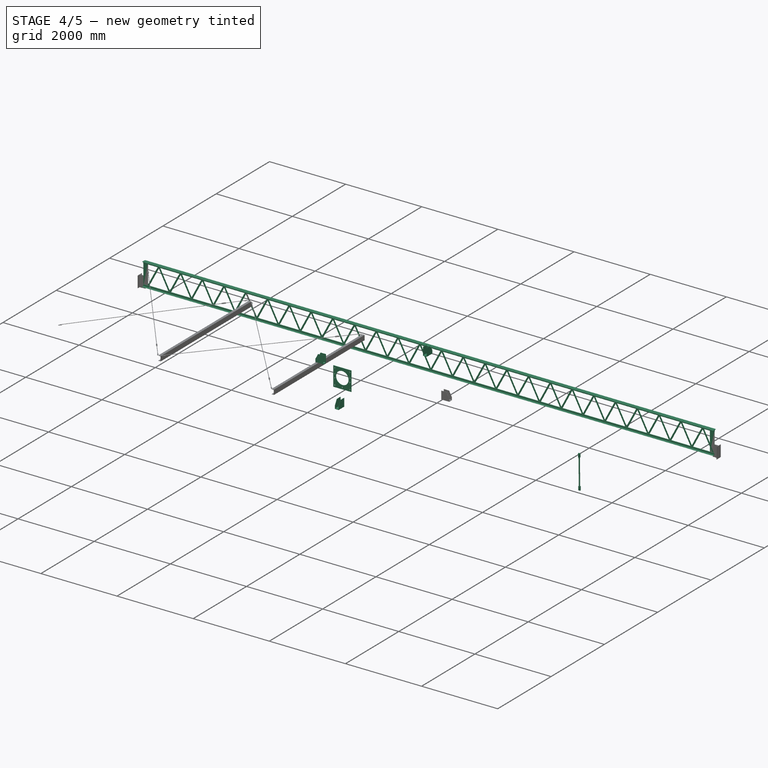
[diagram: stage 4 of 5 — iso view after this stage's code; geometry added in this stage tinted green]
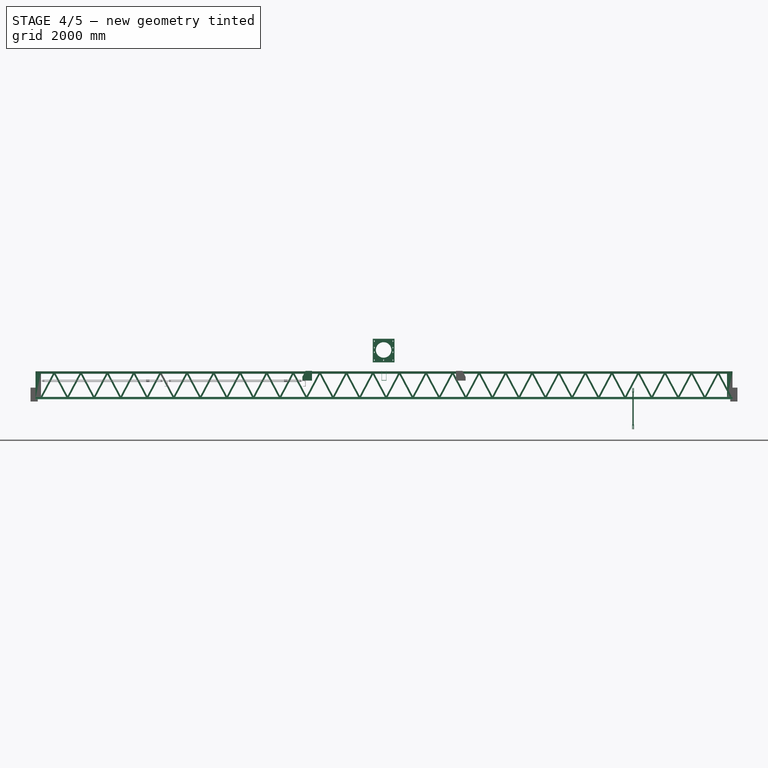
[diagram: stage 4 of 5 — front view after this stage's code; geometry added in this stage tinted green]
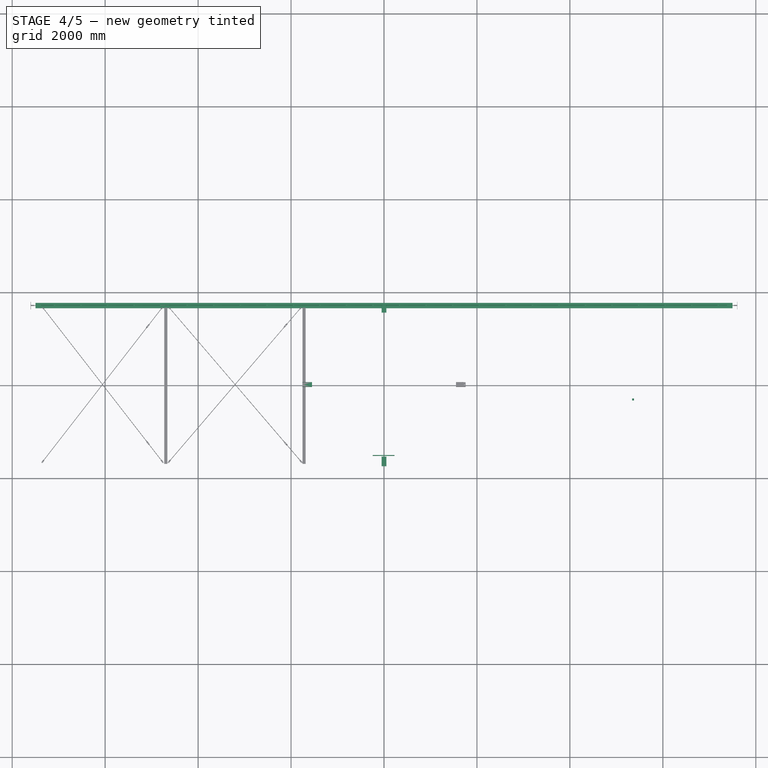
[diagram: stage 4 of 5 — top view after this stage's code; geometry added in this stage tinted green]
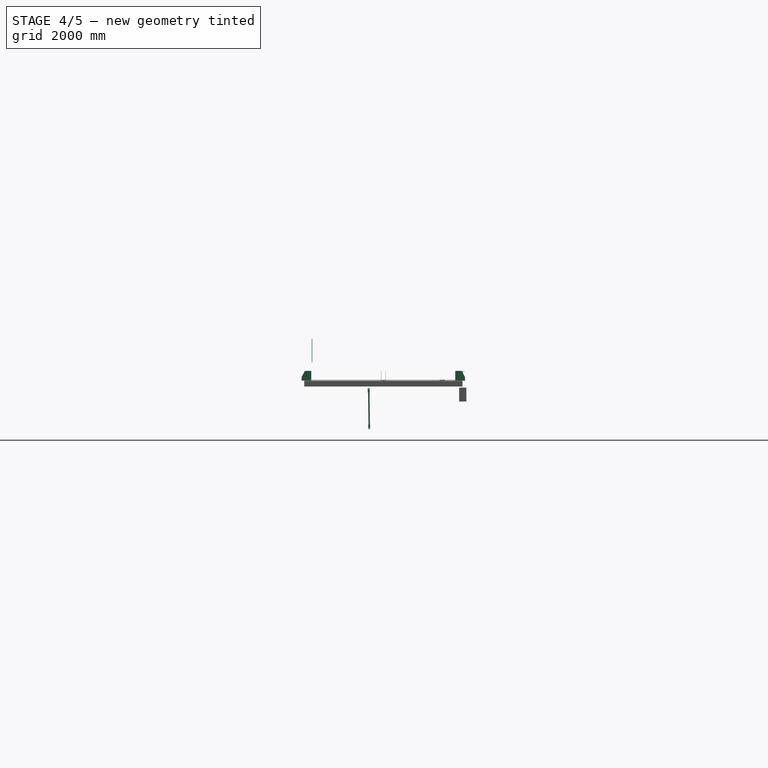
[diagram: stage 4 of 5 — right view after this stage's code; geometry added in this stage tinted green]
FEATURE [Part::Feature] Part__Feature  label="電動トップハンドル_LTKD-01 v5"
  Placement = pos=(0,-389.711,-5.7e-14) rot=(1,0,0;1.5708rad)
  shape: bbox 555.2 x 557.2 x 1150 mm, 73 faces (baked)
FEATURE [App::Part] Part004  label="開閉台"
  Group = -> [Part__Feature]
  Origin = -> Origin004
  Placement = pos=(0,-400,1500) rot=(0,0,1;3.14159rad)
  expr: .Placement.Base.z = Spreadsheet.h2
FEATURE [Sketcher::SketchObject] Sketch006
  FullyConstrained = false
  Placement = pos=(0,0,0) rot=(0.57735,0.57735,0.57735;2.0944rad)
  sketch-geometry (5):
    g0: Circle CenterX=0 CenterY=0 CenterZ=0 NormalX=0 NormalY=0 NormalZ=1 AngleXU=0 Radius=7.5
    g1: ArcOfCircle CenterX=0 CenterY=0 CenterZ=0 NormalX=0 NormalY=0 NormalZ=1 AngleXU=0 Radius=20 StartAngle=3.14159 EndAngle=6.28319
    g2: LineSegment StartX=-20 StartY=9.32106e-06 StartZ=0 EndX=-20 EndY=80 EndZ=0
    g3: LineSegment StartX=-20 StartY=80 StartZ=0 EndX=20 EndY=80 EndZ=0
    g4: LineSegment StartX=20 StartY=80 StartZ=0 EndX=20 EndY=3.56439e-05 EndZ=0
  constraints (13):
    c: Coincident(g0,g-1)
    c: Coincident(g1,g0)
    c: Radius(g1) = 20
    c: Radius(g0) = 7.5
    c: Vertical(g2)
    c: Coincident(g2,g3)
    c: Horizontal(g3)
    c: Coincident(g3,g4)
    c: Vertical(g4)
    c: Coincident(g1,g4)
    c: Coincident(g1,g2)
    c: DistanceY(g-1,g3) = 80
    c: DistanceX(g3,g3) = 40
FEATURE [Part::Extrusion] Extrude006
  Base = -> Sketch006
  Dir = (1,0,0)
  DirMode = 2
  FaceMakerClass = Part::FaceMakerBullseye
  LengthFwd = 40
  LengthRev = 0
  Solid = true
  Symmetric = true
FEATURE [Sketcher::SketchObject] Sketch007
  ExternalGeometry = -> [Extrude006]
  FullyConstrained = false
  MapMode = 5
  Placement = pos=(0,-20,0) rot=(1,0,0;1.5708rad)
  sketch-geometry (4):
    g0: LineSegment StartX=-5 StartY=-25.0355 StartZ=0 EndX=5 EndY=-25.0355 EndZ=0
    g1: LineSegment StartX=5 StartY=-25.0355 StartZ=0 EndX=5 EndY=60 EndZ=0
    g2: LineSegment StartX=5 StartY=60 StartZ=0 EndX=-5 EndY=60 EndZ=0
    g3: LineSegment StartX=-5 StartY=60 StartZ=0 EndX=-5 EndY=-25.0355 EndZ=0
  constraints (11):
    c: Coincident(g0,g1)
    c: Coincident(g1,g2)
    c: Coincident(g2,g3)
    c: Coincident(g3,g0)
    c: Horizontal(g0)
    c: Horizontal(g2)
    c: Vertical(g1)
    c: Vertical(g3)
    c: Distance(g1,g-3) = 20
    c: DistanceX(g0,g0) = 10
    c: DistanceX(g0,g-1) = 5
FEATURE [Part::Extrusion] Extrude007
  Base = -> Sketch007
  Dir = (0,-1,2e-16)
  DirMode = 2
  FaceMakerClass = Part::FaceMakerBullseye
  LengthFwd = 50
  LengthRev = 0
  Reversed = true
  Solid = true
  Symmetric = false
FEATURE [Part::Cut] Cut002
  Base = -> Extrude006
  Tool = -> Extrude007
FEATURE [Sketcher::SketchObject] Sketch008
  FullyConstrained = true
  MapMode = 5
  Placement = pos=(0,0,80) rot=(0,0,1;0rad)
  sketch-geometry (1):
    g0: Circle CenterX=0 CenterY=0 CenterZ=0 NormalX=0 NormalY=0 NormalZ=1 AngleXU=0 Radius=15
  constraints (2):
    c: Coincident(g0,g-1)
    c: Radius(g0) = 15
FEATURE [Part::Extrusion] Extrude008
  Base = -> Sketch008
  Dir = (0,0,1)
  DirMode = 2
  FaceMakerClass = Part::FaceMakerBullseye
  LengthFwd = 700
  LengthRev = 0
  Solid = true
  Symmetric = false
FEATURE [Part::FeaturePython] Clone  label="Cut003"  # Draft clone (typed FeaturePython)
  AttacherType = Attacher::AttachEngine3D
  Fuse = false
  Objects = -> [Cut002]
  Placement = pos=(-1.83e-13,0,850) rot=(0,1,0;3.14159rad)
  Scale = (1,1,1)
FEATURE [Part::Compound] Compound
  Links = -> [Part005]
  Placement = pos=(5358.5,-303.109,175) rot=(1,-2e-06,0;0.012681rad)
  expr: .Placement.Base.x = Spreadsheet.L0 - Spreadsheet.l2
FEATURE [Spreadsheet::Sheet] Spreadsheet001  label="Spreadsheet_feedWell"
  cells = A2='tankDia   D0; B2(D0)=15500; A3='depth of water  hw; B3(hw)=3500; A4='feedWell dia  dia; B4(dia)==D0 * 0.2; A5='feedWell hight  h0; B5(h0)==hw * 0.6; A6='bracket hight h1; B6(h1)=1200
FEATURE [Sketcher::SketchObject] Sketch015
  FullyConstrained = false
  Placement = pos=(0,0,0) rot=(1,0,0;1.5708rad)
  sketch-geometry (23):
    g0: LineSegment StartX=-235 StartY=2.04e-14 StartZ=0 EndX=-166.5 EndY=2.04e-14 EndZ=0
    g1: LineSegment StartX=235 StartY=0 StartZ=0 EndX=235 EndY=240 EndZ=0
    g2: LineSegment StartX=235 StartY=240 StartZ=0 EndX=-235 EndY=240 EndZ=0
    g3: LineSegment StartX=-235 StartY=240 StartZ=0 EndX=-235 EndY=2.84e-14 EndZ=0
    g4: ArcOfCircle CenterX=0 CenterY=0 CenterZ=0 NormalX=0 NormalY=0 NormalZ=1 AngleXU=0 Radius=166.5 StartAngle=0 EndAngle=3.14159
    g5: ArcOfCircle CenterX=200 CenterY=200 CenterZ=0 NormalX=0 NormalY=0 NormalZ=1 AngleXU=0 Radius=7 StartAngle=-9e-16 EndAngle=3.14159
    g6: ArcOfCircle CenterX=200 CenterY=180 CenterZ=0 NormalX=0 NormalY=0 NormalZ=1 AngleXU=0 Radius=7 StartAngle=3.14159 EndAngle=6.28319
    g7: LineSegment StartX=193 StartY=200 StartZ=0 EndX=193 EndY=180 EndZ=0
    g8: LineSegment StartX=207 StartY=180 StartZ=0 EndX=207 EndY=200 EndZ=0
    g9: ArcOfCircle CenterX=200 CenterY=60 CenterZ=0 NormalX=0 NormalY=0 NormalZ=1 AngleXU=0 Radius=7 StartAngle=0 EndAngle=3.14159
    g10: ArcOfCircle CenterX=200 CenterY=40 CenterZ=0 NormalX=0 NormalY=0 NormalZ=1 AngleXU=0 Radius=7 StartAngle=3.14159 EndAngle=6.28319
    g11: LineSegment StartX=193 StartY=60 StartZ=0 EndX=193 EndY=40 EndZ=0
    g12: LineSegment StartX=207 StartY=40 StartZ=0 EndX=207 EndY=60 EndZ=0
    g13: ArcOfCircle CenterX=-200 CenterY=200.393 CenterZ=0 NormalX=0 NormalY=0 NormalZ=1 AngleXU=0 Radius=7 StartAngle=3e-16 EndAngle=3.14159
    g14: ArcOfCircle CenterX=-200 CenterY=180.393 CenterZ=0 NormalX=0 NormalY=0 NormalZ=1 AngleXU=0 Radius=7 StartAngle=3.14159 EndAngle=6.28319
    g15: LineSegment StartX=-207 StartY=200.393 StartZ=0 EndX=-207 EndY=180.393 EndZ=0
    g16: LineSegment StartX=-193 StartY=180.393 StartZ=0 EndX=-193 EndY=200.393 EndZ=0
    g17: ArcOfCircle CenterX=-200 CenterY=60.3929 CenterZ=0 NormalX=0 NormalY=0 NormalZ=1 AngleXU=0 Radius=7 StartAngle=0 EndAngle=3.14159
    g18: ArcOfCircle CenterX=-200 CenterY=40.3929 CenterZ=0 NormalX=0 NormalY=0 NormalZ=1 AngleXU=0 Radius=7 StartAngle=3.14159 EndAngle=6.28319
    g19: LineSegment StartX=-207 StartY=60.3929 StartZ=0 EndX=-207 EndY=40.3929 EndZ=0
    g20: LineSegment StartX=-193 StartY=40.3929 StartZ=0 EndX=-193 EndY=60.3929 EndZ=0
    g21: LineSegment StartX=207.004 StartY=200.734 StartZ=0 EndX=-193 EndY=200.393 EndZ=0
    g22: LineSegment StartX=166.5 StartY=0 StartZ=0 EndX=235 EndY=0 EndZ=0
  constraints (58):
    c: Coincident(g22,g1)
    c: Coincident(g1,g2)
    c: Coincident(g2,g3)
    c: Coincident(g3,g0)
    c: Horizontal(g0)
    c: Vertical(g1)
    c: Vertical(g3)
    c: PointOnObject(g0,g-1)
    c: Coincident(g4,g-1)
    c: Radius(g4) = 166.5
    c: DistanceX(g2,g2) = 470
    c: Symmetric(g1,g2,g-2)
    c: DistanceY(g1,g1) = 240
    c: DistanceX(g5,g5) = 14
    c: DistanceY(g7,g7) = 20
    c: DistanceY(g5,g1) = 40
    c: DistanceX(g4,g5) = 200
    c: Tangent(g9,g11) = -1.5708
    c: Tangent(g11,g10) = -1.5708
    c: Tangent(g10,g12) = -1.5708
    c: Tangent(g12,g9) = -1.5708
    c: Equal(g9,g10)
    c: Vertical(g11)
    c: Equal(g5,g9) = 14
    c: Equal(g7,g11) = 20
    c: Vertical(g9,g6)
    c: DistanceY(g9,g5) = 140
    c: Equal(g5,g13) = 14
    c: Equal(g7,g15) = 20
    c: Tangent(g17,g19) = -1.5708
    c: Tangent(g19,g18) = -1.5708
    c: Tangent(g18,g20) = -1.5708
    c: Tangent(g20,g17) = -1.5708
    c: Equal(g17,g18)
    c: Vertical(g19)
    c: Equal(g13,g17) = 14
    c: Equal(g15,g19) = 20
    c: Vertical(g17,g14)
    c: DistanceY(g17,g13) = 140
    c: Angle(g21) = -3.14074
    c: Coincident(g0,g4)
    c: Coincident(g22,g4)
    c: Horizontal(g22)
    c: PointOnObject(g1,g-1)
    c: Vertical(g16)
    c: Vertical(g15)
    c: Coincident(g13,g21)
    c: Tangent(g5,g8) = -1.5708
    c: Tangent(g16,g13) = -1.5708
    c: Tangent(g15,g14) = -1.5708
    c: Tangent(g16,g14) = -1.5708
    c: Tangent(g15,g13) = -1.5708
    c: DistanceX(g13,g4) = 200
    c: Vertical(g8)
    c: Vertical(g7)
    c: Tangent(g5,g7) = -1.5708
    c: Tangent(g7,g6) = -1.5708
    c: Tangent(g8,g6) = -1.5708
FEATURE [Part::Extrusion] Extrude014
  Base = -> Sketch015
  Dir = (0,-1,2e-16)
  DirMode = 2
  FaceMakerClass = Part::FaceMakerBullseye
  LengthFwd = 10
  LengthRev = 0
  Solid = true
  Symmetric = false
FEATURE [Sketcher::SketchObject] Sketch016
  ExternalGeometry = -> [Extrude014]
  FullyConstrained = false
  Placement = pos=(0,0,0) rot=(1,0,0;1.5708rad)
  sketch-geometry (26):
    g0: LineSegment StartX=-235 StartY=0 StartZ=0 EndX=-166.5 EndY=-4.08e-14 EndZ=0
    g1: LineSegment StartX=235 StartY=0 StartZ=0 EndX=235 EndY=-267.623 EndZ=0
    g2: LineSegment StartX=235 StartY=-267.623 StartZ=0 EndX=-235 EndY=-267.623 EndZ=0
    g3: LineSegment StartX=-235 StartY=-267.623 StartZ=0 EndX=-235 EndY=0 EndZ=0
    g4: ArcOfCircle CenterX=0 CenterY=-4.08e-14 CenterZ=0 NormalX=0 NormalY=0 NormalZ=1 AngleXU=0 Radius=166.5 StartAngle=3.14159 EndAngle=6.28319
    g5: ArcOfCircle CenterX=200 CenterY=-40 CenterZ=0 NormalX=0 NormalY=0 NormalZ=1 AngleXU=0 Radius=7 StartAngle=3e-16 EndAngle=3.14159
    g6: ArcOfCircle CenterX=200 CenterY=-60 CenterZ=0 NormalX=0 NormalY=0 NormalZ=1 AngleXU=0 Radius=7 StartAngle=3.14159 EndAngle=6.28319
    g7: LineSegment StartX=193 StartY=-40 StartZ=0 EndX=193 EndY=-60 EndZ=0
    g8: LineSegment StartX=207 StartY=-60 StartZ=0 EndX=207 EndY=-40 EndZ=0
    g9: ArcOfCircle CenterX=200 CenterY=-210 CenterZ=0 NormalX=0 NormalY=0 NormalZ=1 AngleXU=0 Radius=7 StartAngle=0 EndAngle=3.14159
    g10: ArcOfCircle CenterX=200 CenterY=-230 CenterZ=0 NormalX=0 NormalY=0 NormalZ=1 AngleXU=0 Radius=7 StartAngle=3.14159 EndAngle=6.28319
    g11: LineSegment StartX=193 StartY=-210 StartZ=0 EndX=193 EndY=-230 EndZ=0
    g12: LineSegment StartX=207 StartY=-230 StartZ=0 EndX=207 EndY=-210 EndZ=0
    g13: ArcOfCircle CenterX=-200 CenterY=-40 CenterZ=0 NormalX=0 NormalY=0 NormalZ=1 AngleXU=0 Radius=7 StartAngle=0 EndAngle=3.14159
    g14: ArcOfCircle CenterX=-200 CenterY=-60 CenterZ=0 NormalX=0 NormalY=0 NormalZ=1 AngleXU=0 Radius=7 StartAngle=3.14159 EndAngle=6.28319
    g15: LineSegment StartX=-207 StartY=-40 StartZ=0 EndX=-207 EndY=-60 EndZ=0
    g16: LineSegment StartX=-193 StartY=-60 StartZ=0 EndX=-193 EndY=-40 EndZ=0
    g17: ArcOfCircle CenterX=-200 CenterY=-210 CenterZ=0 NormalX=0 NormalY=0 NormalZ=1 AngleXU=0 Radius=7 StartAngle=1.4e-15 EndAngle=3.14159
    g18: ArcOfCircle CenterX=-200 CenterY=-230 CenterZ=0 NormalX=0 NormalY=0 NormalZ=1 AngleXU=0 Radius=7 StartAngle=3.14159 EndAngle=6.28319
    g19: LineSegment StartX=-207 StartY=-210 StartZ=0 EndX=-207 EndY=-230 EndZ=0
    g20: LineSegment StartX=-193 StartY=-230 StartZ=0 EndX=-193 EndY=-210 EndZ=0
    g21: LineSegment StartX=166.5 StartY=-4.08e-14 StartZ=0 EndX=235 EndY=0 EndZ=0
    g22: ArcOfCircle CenterX=0 CenterY=-210 CenterZ=0 NormalX=0 NormalY=0 NormalZ=1 AngleXU=0 Radius=7 StartAngle=-9e-16 EndAngle=3.14159
    g23: ArcOfCircle CenterX=0 CenterY=-230 CenterZ=0 NormalX=0 NormalY=0 NormalZ=1 AngleXU=0 Radius=7 StartAngle=3.14159 EndAngle=6.28319
    g24: LineSegment StartX=-7 StartY=-210 StartZ=0 EndX=-7 EndY=-230 EndZ=0
    g25: LineSegment StartX=7 StartY=-230 StartZ=0 EndX=7 EndY=-210 EndZ=0
  constraints (65):
    c: Coincident(g21,g1)
    c: Coincident(g1,g2)
    c: Coincident(g2,g3)
    c: Coincident(g3,g0)
    c: Horizontal(g2)
    c: Vertical(g1)
    c: Vertical(g3)
    c: Coincident(g21,g-3)
    c: Coincident(g0,g-4)
    c: Coincident(g4,g-1)
    c: Horizontal(g4,g4)
    c: Horizontal(g4,g4)
    c: Tangent(g5,g7) = -1.5708
    c: Tangent(g7,g6) = -1.5708
    c: Tangent(g6,g8) = -1.5708
    c: Tangent(g8,g5) = -1.5708
    c: Equal(g5,g6)
    c: Vertical(g7)
    c: DistanceY(g8,g8) = 20
    c: DistanceX(g5,g5) = 14
    c: Vertical(g5,g-5)
    c: DistanceY(g5,g4) = 40
    c: Tangent(g9,g11) = -1.5708
    c: Tangent(g11,g10) = -1.5708
    c: Tangent(g10,g12) = -1.5708
    c: Tangent(g12,g9) = -1.5708
    c: Equal(g9,g10)
    c: Vertical(g11)
    c: Equal(g8,g12) = 20
    c: Equal(g5,g9) = 14
    c: Vertical(g6,g9)
    c: Tangent(g13,g15) = -1.5708
    c: Tangent(g15,g14) = -1.5708
    c: Tangent(g14,g16) = -1.5708
    c: Tangent(g16,g13) = -1.5708
    c: Equal(g13,g14)
    c: Vertical(g15)
    c: Equal(g8,g16) = 20
    c: Equal(g5,g13) = 14
    c: Tangent(g17,g19) = -1.5708
    c: Tangent(g19,g18) = -1.5708
    c: Tangent(g18,g20) = -1.5708
    c: Tangent(g20,g17) = -1.5708
    c: Equal(g17,g18)
    c: Vertical(g19)
    c: Equal(g16,g20) = 20
    c: Equal(g13,g17) = 14
    c: Vertical(g14,g17)
    c: Tangent(g22,g24) = -1.5708
    c: Tangent(g24,g23) = -1.5708
    c: Tangent(g23,g25) = -1.5708
    c: Tangent(g25,g22) = -1.5708
    c: Equal(g22,g23)
    c: Vertical(g24)
    c: DistanceX(g22,g22) = 14
    c: DistanceY(g24,g24) = 20
    c: PointOnObject(g22,g-2)
    c: Horizontal(g9,g22)
    c: DistanceY(g9,g5) = 170
    c: DistanceY(g17,g13) = 170
    c: DistanceX(g14,g6) = 400
    c: DistanceY(g13,g0) = 40
    c: Coincident(g0,g4)
    c: Coincident(g4,g21)
    c: Radius(g4) = 166.5
FEATURE [Part::Extrusion] Extrude015
  Base = -> Sketch016
  Dir = (0,-1,2e-16)
  DirMode = 2
  FaceMakerClass = Part::FaceMakerBullseye
  LengthFwd = 10
  LengthRev = 0
  Solid = true
  Symmetric = false
FEATURE [App::Part] Part007  label="pipeBrg"
  Group = -> [Sketch015,Sketch016,Extrude014,Extrude015]
  Origin = -> Origin007
  Placement = pos=(0,-1538.75,1787.43) rot=(0,0,1;0rad)
FEATURE [Part::Compound] Compound004  label="Brg"
  Links = -> [Part007]
  Placement = pos=(-8.34,9,72.567) rot=(0,0,1;0rad)
FEATURE [Spreadsheet::Sheet] Spreadsheet002  label="Spreadsheet_support"
  cells = A1='tankDia   D; B1(D0)=15500; A2='梁成H0; B2(H0)=600; A3='梁長L0; B3(L0)==D0 - 500; A4='玄材shp; B4(shp)='50x50x6; A5='玄材ゲージラインGL0; B5(GL0)=30; A6='ラチス材Lshp; B6(Lshp)='6x38; A7='ラチス材幅Lb0; B7(Lb0)=38; A8='ラチス材厚Lt0; B8(Gt0)=6; A9='ガセットプレート幅Gb0; B9(Gb0)=120; A10='ラチスピッチrp0; B10(rp0)==(L0 - 2 * Gb0) / rn0; A11='ラチス配列数rn0; B11(rn0)==D0 / H0; B16='t; C16='A; D16='GLine; A17='40x40x3; B17=3; C17=40; D17=22; A18='40x40x5; B18=5; C18=40; D18=22; A19='50x50x4; B19=4; C19=50; D19=30; A20='50x50x6; B20=6; C20=50; D20=30; A21='65x65x6; B21=6; C21=65; D21=35; A22='65x65x8; B22=8; C22=65; D22=35; A23='75x75x6; B23=6; C23=75; D23=40; A24='75x75x9; B24=9; C24=75; D24=40; A25='75x75x12; B25=12; C25=75; D25=40; A26='90x90x7; B26=7; C26=90; D26=50; A27='90x90x10; B27=10; C27=90; D27=50; A28='90x90x13; B28=13; C28=90; D28=50; A29='100x100x7; B29=7; C29=100; D29=55; A30='100x100x10; B30=10; C30=100; D30=55; A31='100x100x13; B31=13; C31=100; D31=55; A34='6x38; B34=6; C34=38; A35='9x38; B35=9; C35=38; A36='6x44; B36=6; C36=44; A37='9x44; B37=9; C37=44; A38='4.5x50; B38=4.5; C38=50; A39='6x50; B39=6; C39=50; A40='9x50; B40=9; C40=50; A41='6x65; B41=6; C41=65; A42='9x65; B42=9; C42=65; A43='6x75; B43=6; C43=75; A44='9x75; B44=9; C44=75; A45='6x90; B45=6; C45=90; A46='9x90; B46=9; C46=90
FEATURE [Part::FeaturePython] AngleSteel002  # WARN: FeaturePython — macro-defined, semantics opaque (R4)
  A = 50
  B = 50
  L = 1000
  Placement = pos=(0,28.8,14.4) rot=(0,0,1;1.5708rad)
  Solid = false
  g0 = 7.85
  mass = 0
  size = 7
  standard = SS_Equal
  t = 8
FEATURE [Part::Mirroring] Mirror  label="AngleSteel (mirrored)"
  Base = (-2.54e-14,114.396,14.3963)
  Normal = (0,0,-1)
  Placement = pos=(0,0,600) rot=(0,0,1;0rad)
  Source = -> AngleSteel002
  expr: .Placement.Base.z = Spreadsheet002.H0
FEATURE [Part::Extrusion] Extrude021
  Base = -> AngleSteel002
  Dir = (-1,2e-16,0)
  DirMode = 2
  FaceMakerClass = Part::FaceMakerBullseye
  LengthFwd = 15000
  LengthRev = 0
  Reversed = true
  Solid = false
  Symmetric = false
  expr: LengthFwd = Spreadsheet002.L0
FEATURE [Part::Extrusion] Extrude022
  Base = -> Mirror
  Dir = (-1,2e-16,0)
  DirMode = 2
  FaceMakerClass = Part::FaceMakerBullseye
  LengthFwd = 15000
  LengthRev = 0
  Reversed = true
  Solid = false
  Symmetric = false
  expr: LengthFwd = Spreadsheet002.L0
FEATURE [Sketcher::SketchObject] Sketch020
  ExternalGeometry = -> [Extrude022,Extrude021]
  FullyConstrained = false
  Placement = pos=(0,0,0) rot=(1,0,0;1.5708rad)
  expr: Constraints[2] = Spreadsheet002.Gb0
  expr: Constraints[5] = Spreadsheet002.rp0
  expr: Constraints[8] = Spreadsheet002.H0 - 60
  sketch-geometry (3):
    g0: LineSegment StartX=120 StartY=44.4 StartZ=0 EndX=405.677 EndY=584.4 EndZ=0
    g1: LineSegment StartX=405.677 StartY=584.4 StartZ=0 EndX=691.355 EndY=44.4 EndZ=0
    g2: LineSegment StartX=405.677 StartY=584.4 StartZ=0 EndX=405.677 EndY=511.834 EndZ=0
  constraints (9):
    c: Coincident(g0,g1)
    c: Horizontal(g0,g1)
    c: DistanceX(g-1,g0) = 120
    c: Coincident(g2,g0)
    c: Symmetric(g1,g0,g2)
    c: DistanceX(g0,g1) = 571.355
    c: DistanceY(g-1,g-4) = 14.4
    c: DistanceY(g-4,g0) = 30
    c: DistanceY(g0,g0) = 540
FEATURE [Sketcher::SketchObject] Sketch021
  ExternalGeometry = -> [Sketch020,Extrude021]
  FullyConstrained = true
  Placement = pos=(0,0,14.4) rot=(1,0,0;1.5708rad)
  expr: Constraints[23] = Spreadsheet002.Lb0
  expr: Constraints[24] = Spreadsheet002.H0 - 20
  expr: Constraints[25] = Spreadsheet002.Lb0 / 2
  sketch-geometry (9):
    g0: LineSegment StartX=120 StartY=70.6308 StartZ=0 EndX=394.763 EndY=590 EndZ=0
    g1: LineSegment StartX=405.677 StartY=529.369 StartZ=0 EndX=130.914 EndY=10 EndZ=0
    g2: LineSegment StartX=405.677 StartY=529.369 StartZ=0 EndX=680.44 EndY=10 EndZ=0
    g3: LineSegment StartX=691.355 StartY=70.6308 StartZ=0 EndX=416.592 EndY=590 EndZ=0
    g4: LineSegment StartX=394.763 StartY=590 StartZ=0 EndX=416.592 EndY=590 EndZ=0
    g5: LineSegment StartX=680.44 StartY=10 StartZ=0 EndX=691.355 EndY=10 EndZ=0
    g6: LineSegment StartX=691.355 StartY=10 StartZ=0 EndX=691.355 EndY=70.6308 EndZ=0
    g7: LineSegment StartX=130.914 StartY=10 StartZ=0 EndX=120 EndY=10 EndZ=0
    g8: LineSegment StartX=120 StartY=10 StartZ=0 EndX=120 EndY=70.6308 EndZ=0
  constraints (27):
    c: Coincident(g7,g8)
    c: Coincident(g0,g8)
    c: Coincident(g1,g7)
    c: Coincident(g0,g4)
    c: Coincident(g1,g2)
    c: Coincident(g3,g4)
    c: Coincident(g2,g5)
    c: Coincident(g5,g6)
    c: Coincident(g3,g6)
    c: Horizontal(g7)
    c: Horizontal(g4)
    c: Vertical(g8)
    c: Vertical(g7,g-4)
    c: Horizontal(g0,g3)
    c: Horizontal(g5)
    c: Horizontal(g1,g2)
    c: Vertical(g6)
    c: PointOnObject(g-3,g6)
    c: Parallel(g1,g-4)
    c: Parallel(g1,g0)
    c: Parallel(g2,g-3)
    c: Parallel(g-3,g3)
    c: Vertical(g1,g-4)
    c: Distance(g1,g0) = 38
    c: DistanceY(g2,g3) = 580
    c: Distance(g1,g-4) = 19
    c: DistanceY(g-5,g7) = 10
FEATURE [Part::Extrusion] Extrude019
  Base = -> Sketch021
  Dir = (0,-1,2e-16)
  DirMode = 2
  FaceMakerClass = Part::FaceMakerBullseye
  LengthFwd = 6
  LengthRev = 0
  Placement = pos=(0,28.8,0) rot=(0,0,1;0rad)
  Solid = true
  Symmetric = false
FEATURE [Part::FeaturePython] Array001  # Draft array (typed FeaturePython)
  AlwaysSyncPlacement = false
  Angle = 360
  ArrayType = 0
  Axis = (0,0,1)
  Base = -> Extrude019
  Center = (0,0,0)
  Count = 26
  ExpandArray = false
  Fuse = false
  IntervalAxis = (0,0,0)
  IntervalX = (571.355,0,0)
  IntervalY = (0,100,0)
  IntervalZ = (0,0,100)
  NumberCircles = 3
  NumberPolar = 5
  NumberX = 26
  NumberY = 1
  NumberZ = 1
  PlacementList = 26 placements: arithmetic series from (0,28.8,0) step (571.355,0,0) to (14283.9,28.8,0)
  RadialDistance = 50
  ScaleList = (26) [(1,1,1),(1,1,1),(1,1,1),(1,1,1),(1,1,1),(1,1,1),(1,1,1),(1,1,1),(1,1,1),(1,1,1),(1,1,1),(1,1,1),(1,1,1),(1,1,1),(1,1,1),(1,1,1),(1,1,1),(1,1,1),+8 more]
  Symmetry = 1
  TangentialDistance = 25
  expr: .IntervalX.x = Spreadsheet002.rp0
  expr: NumberX = Spreadsheet002.rn0
FEATURE [Sketcher::SketchObject] Sketch022
  ExternalGeometry = -> [Extrude019]
  FullyConstrained = true
  Placement = pos=(0,0,14.4) rot=(1,0,0;1.5708rad)
  expr: Constraints[22] = Spreadsheet002.L0
  sketch-geometry (8):
    g0: LineSegment StartX=0 StartY=10 StartZ=0 EndX=120 EndY=10 EndZ=0
    g1: LineSegment StartX=120 StartY=10 StartZ=0 EndX=120 EndY=590 EndZ=0
    g2: LineSegment StartX=120 StartY=590 StartZ=0 EndX=0 EndY=590 EndZ=0
    g3: LineSegment StartX=0 StartY=590 StartZ=0 EndX=0 EndY=10 EndZ=0
    g4: LineSegment StartX=15000 StartY=590 StartZ=0 EndX=14880 EndY=590 EndZ=0
    g5: LineSegment StartX=14880 StartY=590 StartZ=0 EndX=14880 EndY=10 EndZ=0
    g6: LineSegment StartX=14880 StartY=10 StartZ=0 EndX=15000 EndY=10 EndZ=0
    g7: LineSegment StartX=15000 StartY=10 StartZ=0 EndX=15000 EndY=590 EndZ=0
  constraints (23):
    c: Coincident(g0,g1)
    c: Coincident(g1,g2)
    c: Coincident(g2,g3)
    c: Coincident(g3,g0)
    c: Horizontal(g0)
    c: Horizontal(g2)
    c: Vertical(g1)
    c: Vertical(g3)
    c: Vertical(g-1,g0)
    c: Coincident(g0,g-3)
    c: Horizontal(g1,g-4)
    c: Coincident(g4,g5)
    c: Coincident(g5,g6)
    c: Coincident(g6,g7)
    c: Coincident(g7,g4)
    c: Horizontal(g4)
    c: Horizontal(g6)
    c: Vertical(g5)
    c: Vertical(g7)
    c: Equal(g0,g6)
    c: Horizontal(g6,g0)
    c: Horizontal(g1,g4)
    c: DistanceX(g0,g6) = 15000
FEATURE [Part::Extrusion] Extrude020
  Base = -> Sketch022
  Dir = (0,-1,2e-16)
  DirMode = 2
  FaceMakerClass = Part::FaceMakerBullseye
  LengthFwd = 6
  LengthRev = 0
  Placement = pos=(0,28.8,0) rot=(0,0,1;0rad)
  Solid = true
  Symmetric = false
  expr: LengthFwd = Spreadsheet002.Gt0
FEATURE [Part::MultiFuse] Fusion001
  Shapes = -> [Extrude022,Extrude021]
FEATURE [Part::Mirroring] Mirror001  label="Fusion (mirrored)"
  Base = (-3.2e-15,28.7963,514.396)
  Normal = (0,-1,0)
  Placement = pos=(0,-6,0) rot=(0,0,1;0rad)
  Source = -> Fusion001
  expr: .Placement.Base.y = -Spreadsheet002.Gt0
FEATURE [Part::Compound] Compound008  label="Compound005"
  Links = -> [Mirror001,Fusion001]
FEATURE [App::Part] Part010  label="latticeBeam"
  Group = -> [Sketch020,Sketch022,Sketch021,Fusion001,Mirror,Mirror001,Extrude019,Extrude020,Extrude022,Extrude021,Array001,AngleSteel002,Compound008]
  Origin = -> Origin010
  Placement = pos=(-7500,-1730,785) rot=(0,0,1;0rad)
  expr: .Placement.Base.x = -Spreadsheet002.L0 / 2
  expr: .Placement.Base.y = -Spreadsheet001.dia / 2 - 180
  expr: .Placement.Base.z = Spreadsheet001.h1 - 415
FEATURE [Part::Mirroring] Mirror008  label="latticeBeam (mirrored)"
  Base = (-1000,0,0)
  Normal = (0,1,0)
  Source = -> Part010
FEATURE [Part::FeaturePython] Array002  # Draft array (typed FeaturePython)
  AlwaysSyncPlacement = false
  Angle = 360
  ArrayType = 1
  Axis = (0,0,1)
  Base = -> Cut007
  Center = (0,0,0)
  Count = 4
  ExpandArray = false
  Fuse = false
  IntervalAxis = (0,0,0)
  IntervalX = (50,0,0)
  IntervalY = (0,50,0)
  IntervalZ = (0,0,50)
  NumberCircles = 3
  NumberPolar = 4
  NumberX = 2
  NumberY = 2
  NumberZ = 1
  PlacementList = 4 placements: [(0,0,1200),(0,0,1200),(0,0,1200),(0,0,1200)]
  RadialDistance = 50
  ScaleList = (4) [(1,1,1),(1,1,1),(1,1,1),(1,1,1)]
  Symmetry = 1
  TangentialDistance = 25
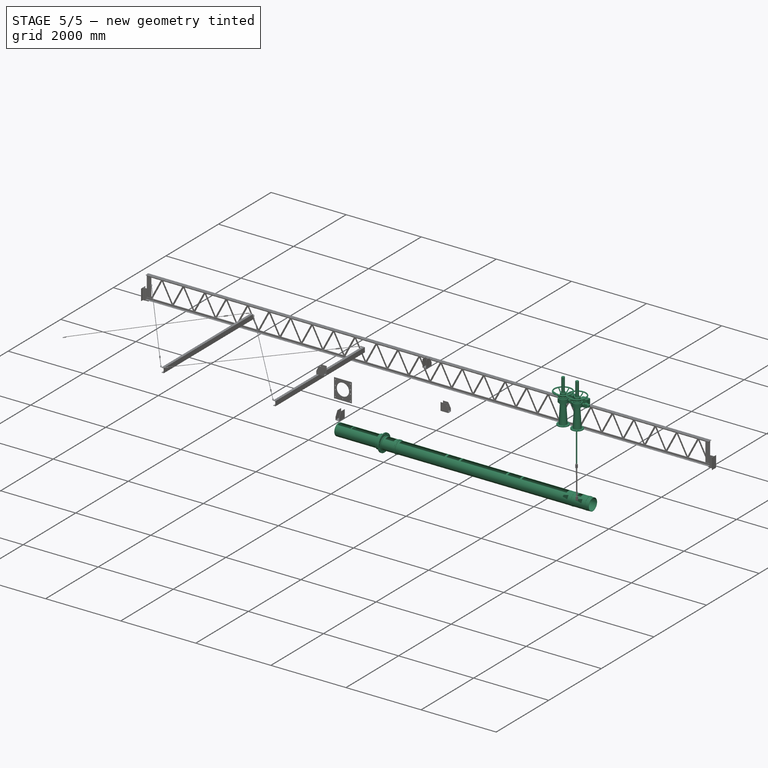
[diagram: stage 5 of 5 — iso view after this stage's code; geometry added in this stage tinted green]
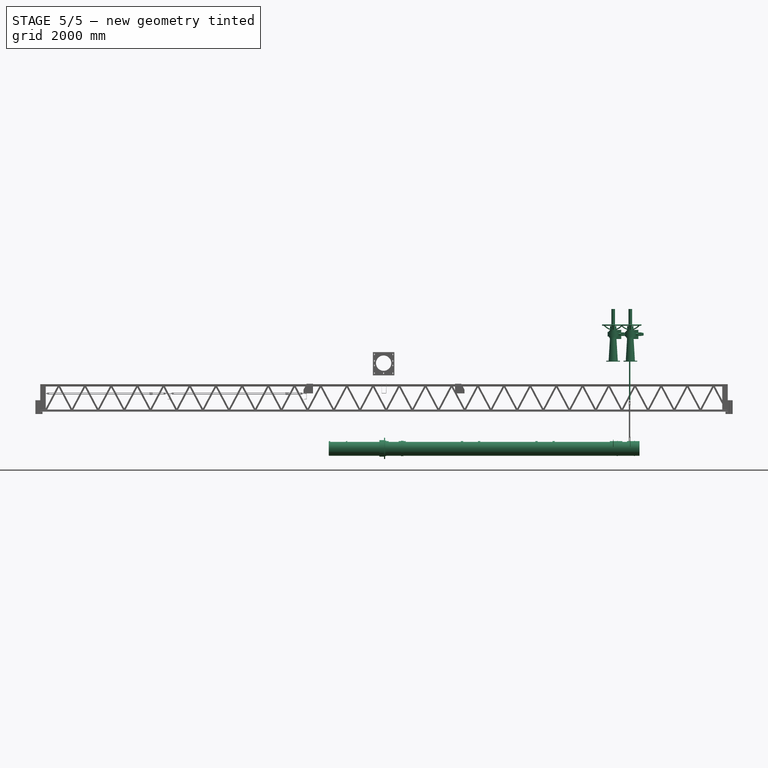
[diagram: stage 5 of 5 — front view after this stage's code; geometry added in this stage tinted green]
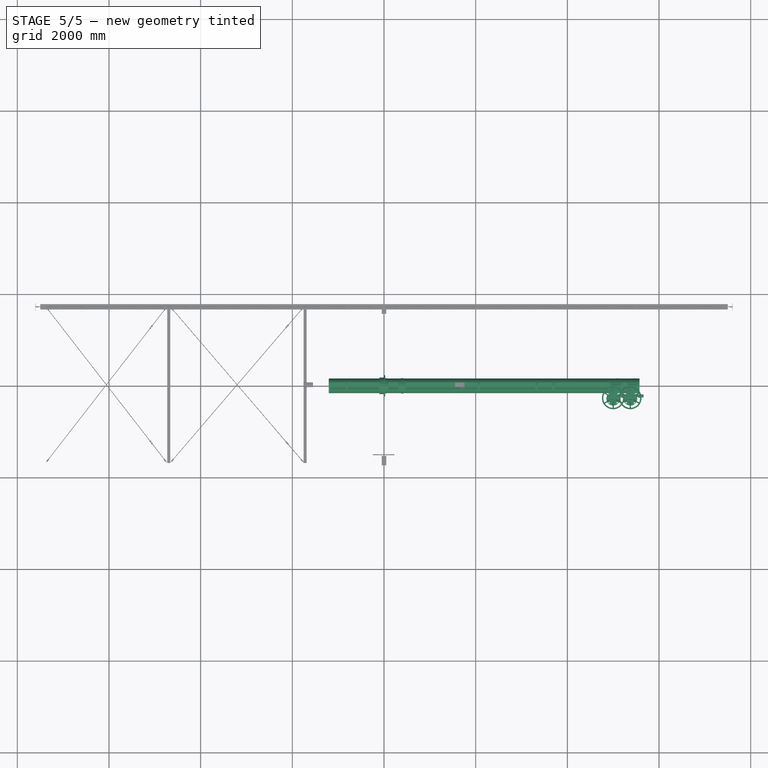
[diagram: stage 5 of 5 — top view after this stage's code; geometry added in this stage tinted green]
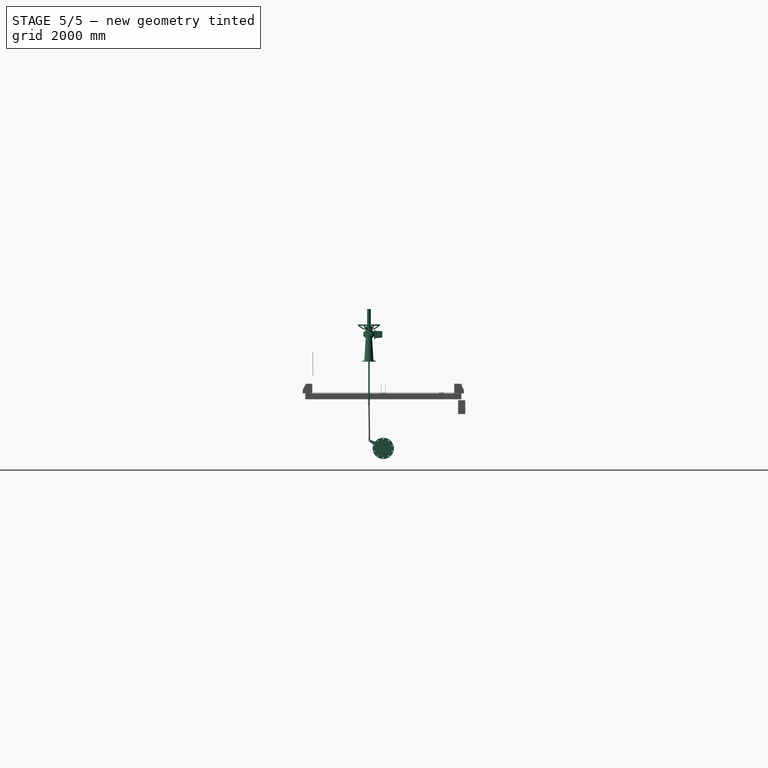
[diagram: stage 5 of 5 — right view after this stage's code; geometry added in this stage tinted green]
FEATURE [Part::FeaturePython] Flange  # WARN: FeaturePython — macro-defined, semantics opaque (R4)
  Placement = pos=(0,0,0) rot=(0.57735,0.57735,0.57735;2.0944rad)
  dia = 6
  fittings = 00_Flange
  material = 0
  standard = 1
FEATURE [Part::FeaturePython] Ring  # WARN: FeaturePython — macro-defined, semantics opaque (R4)
  D = 360
  Placement = pos=(0,0,0) rot=(0,1,0;1.5708rad)
  d = 315
  sface = 0
FEATURE [Part::Extrusion] Extrude
  Base = -> Ring
  Dir = (1,0,0)
  DirMode = 2
  FaceMakerClass = Part::FaceMakerBullseye
  LengthFwd = 100
  LengthRev = 0
  Reversed = true
  Solid = true
  Symmetric = false
FEATURE [App::Part] Part  label="brg01"
  Group = -> [Ring,Extrude,Flange]
  Origin = -> Origin
  Placement = pos=(5200,-1.1983e-12,0) rot=(0,0,1;0rad)
  expr: .Placement.Base.x = Spreadsheet.L0 - Spreadsheet.l1 + Spreadsheet.l1 - 300
FEATURE [Part::FeaturePython] Straight_tube  # WARN: FeaturePython — macro-defined, semantics opaque (R4)
  L = 5200
  dia = 16
  fittings = 05_Straight pipe
  material = 1
  standard = 1
  expr: L = Spreadsheet.L0 - 300
FEATURE [Sketcher::SketchObject] Sketch
  FullyConstrained = true
  Placement = pos=(0,0,0) rot=(1,0,0;1.5708rad)
  expr: Constraints[35] = Spreadsheet.L0 - 400
  sketch-geometry (12):
    g0: LineSegment StartX=5080 StartY=159.25 StartZ=0 EndX=5100 EndY=159.25 EndZ=0
    g1: LineSegment StartX=5100 StartY=159.25 StartZ=0 EndX=5100 EndY=164.25 EndZ=0
    g2: LineSegment StartX=5100 StartY=164.25 StartZ=0 EndX=5080 EndY=164.25 EndZ=0
    g3: LineSegment StartX=5080 StartY=164.25 StartZ=0 EndX=5080 EndY=159.25 EndZ=0
    g4: LineSegment StartX=0 StartY=159.25 StartZ=0 EndX=0 EndY=169.25 EndZ=0
    g5: LineSegment StartX=0 StartY=169.25 StartZ=0 EndX=19 EndY=169.25 EndZ=0
    g6: LineSegment StartX=19 StartY=169.25 StartZ=0 EndX=19 EndY=164.25 EndZ=0
    g7: LineSegment StartX=19 StartY=164.25 StartZ=0 EndX=31 EndY=164.25 EndZ=0
    g8: LineSegment StartX=31 StartY=164.25 StartZ=0 EndX=31 EndY=169.25 EndZ=0
    g9: LineSegment StartX=31 StartY=169.25 StartZ=0 EndX=50 EndY=169.25 EndZ=0
    g10: LineSegment StartX=50 StartY=169.25 StartZ=0 EndX=50 EndY=159.25 EndZ=0
    g11: LineSegment StartX=50 StartY=159.25 StartZ=0 EndX=0 EndY=159.25 EndZ=0
  constraints (36):
    c: Coincident(g0,g1)
    c: Coincident(g1,g2)
    c: Coincident(g2,g3)
    c: Coincident(g3,g0)
    c: Horizontal(g0)
    c: Horizontal(g2)
    c: Vertical(g1)
    c: Vertical(g3)
    c: DistanceY(g-1,g0) = 159.25
    c: DistanceY(g1,g1) = 5
    c: DistanceX(g2,g2) = 20
    c: Vertical(g4)
    c: Coincident(g4,g5)
    c: Horizontal(g5)
    c: Coincident(g5,g6)
    c: Vertical(g6)
    c: Coincident(g6,g7)
    c: Coincident(g7,g8)
    c: Coincident(g8,g9)
    c: Coincident(g9,g10)
    c: Coincident(g10,g11)
    c: Coincident(g11,g4)
    c: Horizontal(g11)
    c: Vertical(g10)
    c: Horizontal(g7)
    c: Horizontal(g9)
    c: Vertical(g8)
    c: DistanceY(g10,g10) = 10
    c: DistanceY(g7,g8) = 5
    c: Horizontal(g8,g5)
    c: DistanceX(g11,g11) = 50
    c: DistanceX(g7,g7) = 12
    c: DistanceX(g5,g5) = 19
    c: DistanceY(g-1,g4) = 159.25
    c: Vertical(g-1,g4)
    c: DistanceX(g-1,g0) = 5100
FEATURE [Part::Revolution] Revolve
  Angle = 360
  Axis = (1,0,0)
  Base = (0,0,0)
  FaceMakerClass = Part::FaceMakerBullseye
  Solid = true
  Source = -> Sketch
  Symmetric = false
FEATURE [Spreadsheet::Sheet] Spreadsheet  label="Spreadsheet_pipeSkimmer"
  cells = A2='tankDia  D0; B2(D0)=13000; A3='fullLength L0; B3(L0)=5500; A4='length       l1; B4(l1)=1200; A5='越流堰数 n0; B5(n0)=3; A6='越流堰長 l3; B6(l3)=1576; A7='開閉台  h2; B7(h2)=1500; A8='開閉台 位置 l2; B8(l2)=500
FEATURE [Sketcher::SketchObject] Sketch001
  FullyConstrained = false
  Placement = pos=(0,0,0) rot=(0.57735,0.57735,0.57735;2.0944rad)
  sketch-geometry (3):
    g0: LineSegment StartX=0 StartY=0 StartZ=0 EndX=114.659 EndY=220.257 EndZ=0
    g1: LineSegment StartX=0 StartY=0 StartZ=0 EndX=-114.659 EndY=220.257 EndZ=0
    g2: ArcOfCircle CenterX=0 CenterY=0 CenterZ=0 NormalX=0 NormalY=0 NormalZ=1 AngleXU=0 Radius=248.314 StartAngle=1.09083 EndAngle=2.05076
  constraints (7):
    c: Coincident(g-1,g0)
    c: Coincident(g1,g0)
    c: Coincident(g2,g0)
    c: Coincident(g2,g1)
    c: Coincident(g2,g0)
    c: Angle(g0,g-2) = 0.479966
    c: Angle(g0,g1) = 0.959931
FEATURE [Part::Extrusion] Extrude001
  Base = -> Sketch001
  Dir = (1,0,0)
  DirMode = 2
  FaceMakerClass = Part::FaceMakerBullseye
  LengthFwd = 1576
  LengthRev = 0
  Placement = pos=(100,0,0) rot=(0,0,1;0rad)
  Solid = true
  Symmetric = false
  expr: LengthFwd = Spreadsheet.l3
FEATURE [Part::FeaturePython] Array  # Draft array (typed FeaturePython)
  AlwaysSyncPlacement = false
  Angle = 360
  ArrayType = 0
  Axis = (0,0,1)
  Base = -> Extrude001
  Center = (0,0,0)
  Count = 3
  ExpandArray = false
  Fuse = false
  IntervalAxis = (0,0,0)
  IntervalX = (1626,0,0)
  IntervalY = (0,100,0)
  IntervalZ = (0,0,100)
  NumberCircles = 3
  NumberPolar = 5
  NumberX = 3
  NumberY = 1
  NumberZ = 1
  PlacementList = 3 placements: arithmetic series from (100,0,0) step (1626,0,0) to (3352,0,0)
  RadialDistance = 50
  ScaleList = (3) [(1,1,1),(1,1,1),(1,1,1)]
  Symmetry = 1
  TangentialDistance = 25
  expr: .IntervalX.x = Spreadsheet.l3 + 50
  expr: NumberX = Spreadsheet.n0
FEATURE [Part::Cut] Cut
  Base = -> Straight_tube
  Tool = -> Array
FEATURE [Sketcher::SketchObject] Sketch002
  FullyConstrained = false
  Placement = pos=(-30,0,0) rot=(0.57735,0.57735,0.57735;2.0944rad)
  expr: .Placement.Base.x = -30
  sketch-geometry (3):
    g0: LineSegment StartX=0 StartY=0 StartZ=0 EndX=-124.513 EndY=239.188 EndZ=0
    g1: LineSegment StartX=0 StartY=0 StartZ=0 EndX=124.513 EndY=239.188 EndZ=0
    g2: ArcOfCircle CenterX=0 CenterY=0 CenterZ=0 NormalX=0 NormalY=0 NormalZ=1 AngleXU=0 Radius=269.656 StartAngle=1.09083 EndAngle=2.05076
  constraints (7):
    c: Coincident(g0,g-1)
    c: Coincident(g1,g0)
    c: Coincident(g2,g1)
    c: Coincident(g2,g0)
    c: Coincident(g2,g0)
    c: Angle(g1,g0) = 0.959931
    c: Angle(g1,g-2) = 0.479966
FEATURE [Part::Extrusion] Extrude002
  Base = -> Sketch002
  Dir = (1,0,0)
  DirMode = 2
  FaceMakerClass = Part::FaceMakerBullseye
  LengthFwd = 1120
  LengthRev = 0
  Placement = pos=(-25,0,0) rot=(0,0,1;0rad)
  Reversed = true
  Solid = true
  Symmetric = false
  expr: LengthFwd = Spreadsheet.l1 - 80
FEATURE [Part::Cut] Cut001
  Base = -> Cut
  Tool = -> Extrude002
FEATURE [Sketcher::SketchObject] Sketch004
  FullyConstrained = true
  Placement = pos=(0,0,0) rot=(0.57735,0.57735,0.57735;2.0944rad)
  sketch-geometry (6):
    g0: LineSegment StartX=0 StartY=0 StartZ=0 EndX=247.487 EndY=247.487 EndZ=0
    g1: Circle CenterX=247.487 CenterY=247.487 CenterZ=0 NormalX=0 NormalY=0 NormalZ=1 AngleXU=0 Radius=7.5
    g2: ArcOfCircle CenterX=247.487 CenterY=247.487 CenterZ=0 NormalX=0 NormalY=0 NormalZ=1 AngleXU=0 Radius=20 StartAngle=5.62869 EndAngle=8.50848
    g3: LineSegment StartX=235.312 StartY=263.354 StartZ=0 EndX=74.8903 EndY=140.258 EndZ=0
    g4: LineSegment StartX=263.354 StartY=235.312 StartZ=0 EndX=140.258 EndY=74.8903 EndZ=0
    g5: ArcOfCircle CenterX=0 CenterY=0 CenterZ=0 NormalX=0 NormalY=0 NormalZ=1 AngleXU=0 Radius=159 StartAngle=0.490434 EndAngle=1.08036
  constraints (15):
    c: Coincident(g0,g-1)
    c: Angle(g-1,g0) = 0.785398
    c: Coincident(g1,g0)
    c: Radius(g1) = 7.5
    c: Coincident(g2,g1)
    c: Coincident(g5,g3)
    c: Coincident(g5,g4)
    c: Coincident(g5,g0)
    c: Tangent(g2,g3) = -1.5708
    c: Tangent(g2,g4) = 1.5708
    c: Equal(g4,g3)
    c: Radius(g5) = 159
    c: Angle(g3,g4) = 0.261799
    c: Distance(g5,g1) = 350
    c: Radius(g2) = 20
FEATURE [Part::Extrusion] Extrude004
  Base = -> Sketch004
  Dir = (1,0,0)
  DirMode = 2
  FaceMakerClass = Part::FaceMakerBullseye
  LengthFwd = 6
  LengthRev = 0
  Solid = true
  Symmetric = true
FEATURE [App::Part] Part003  label="arm"
  Group = -> [Sketch004,Extrude004]
  Origin = -> Origin003
  Placement = pos=(5000,0,0) rot=(1,0,0;1.8326rad)
  expr: .Placement.Base.x = Spreadsheet.L0 - Spreadsheet.l2
FEATURE [Sketcher::SketchObject] Sketch005
  ExternalGeometry = -> [Cut001]
  FullyConstrained = true
  MapMode = 5
  Placement = pos=(-1200,0,0) rot=(0.57735,-0.57735,-0.57735;2.0944rad)
  expr: .Placement.Base.x = -Spreadsheet.l1
  sketch-geometry (1):
    g0: Circle CenterX=0 CenterY=0 CenterZ=0 NormalX=0 NormalY=0 NormalZ=1 AngleXU=0 Radius=152.75
  constraints (2):
    c: Coincident(g0,g-1)
    c: Equal(g0,g-3)
FEATURE [Part::Extrusion] Extrude005
  Base = -> Sketch005
  Dir = (-1,0,0)
  DirMode = 2
  FaceMakerClass = Part::FaceMakerBullseye
  LengthFwd = 6
  LengthRev = 0
  Solid = true
  Symmetric = false
FEATURE [App::Part] Part005  label="rod"
  Group = -> [Cut002,Clone,Sketch007,Sketch006,Sketch008,Extrude006,Extrude007,Extrude008]
  Origin = -> Origin005
FEATURE [Sketcher::SketchObject] Sketch009
  FullyConstrained = false
  Placement = pos=(0,0,0) rot=(0.57735,0.57735,0.57735;2.0944rad)
  sketch-geometry (5):
    g0: Circle CenterX=0 CenterY=0 CenterZ=0 NormalX=0 NormalY=0 NormalZ=1 AngleXU=0 Radius=7.5
    g1: ArcOfCircle CenterX=0 CenterY=0 CenterZ=0 NormalX=0 NormalY=0 NormalZ=1 AngleXU=0 Radius=20 StartAngle=3.14864 EndAngle=6.2925
    g2: LineSegment StartX=-19.9995 StartY=-0.141043 StartZ=0 EndX=-19.9995 EndY=80 EndZ=0
    g3: LineSegment StartX=-19.9995 StartY=80 StartZ=0 EndX=19.9991 EndY=80 EndZ=0
    g4: LineSegment StartX=19.9991 StartY=80 StartZ=0 EndX=19.9991 EndY=0.186233 EndZ=0
  constraints (12):
    c: Coincident(g0,g-1)
    c: Coincident(g1,g0)
    c: Vertical(g2)
    c: Coincident(g2,g3)
    c: Horizontal(g3)
    c: Coincident(g3,g4)
    c: Vertical(g4)
    c: Coincident(g1,g4)
    c: Coincident(g1,g2)
    c: Radius(g0) = 7.5
    c: Radius(g1) = 20
    c: DistanceY(g-1,g3) = 80
FEATURE [Part::Extrusion] Extrude009
  Base = -> Sketch009
  Dir = (1,0,0)
  DirMode = 2
  FaceMakerClass = Part::FaceMakerBullseye
  LengthFwd = 9
  LengthRev = 0
  Solid = true
  Symmetric = true
FEATURE [Part::Cylinder] Cylinder  label="円柱"
  Angle = 360
  AttacherType = Attacher::AttachEngine3D
  FirstAngle = 0
  Height = 1000
  Placement = pos=(0,0,30) rot=(0,0,1;0rad)
  Radius = 15
  SecondAngle = 0
FEATURE [App::Part] Part006  label="rod002"
  Group = -> [Sketch009,Cylinder,Extrude009]
  Origin = -> Origin006
FEATURE [Part::Compound] Compound002  label="rod003"
  Links = -> [Part006]
  Placement = pos=(5359,-313.888,1024.93) rot=(0.999937,-0.011522,-5e-06;5e-06rad)
  expr: .Placement.Base.x = Spreadsheet.L0 - Spreadsheet.l2
FEATURE [Part::Compound] Compound003  label="開閉台001"
  Links = -> [Part004]
  Placement = pos=(5000,-303.595,392.389) rot=(0.999808,-0.016585,0;2e-06rad)
  expr: .Placement.Base.x = Spreadsheet.L0 - Spreadsheet.l2
FEATURE [Part::FeaturePython] Straight_tube001  # WARN: FeaturePython — macro-defined, semantics opaque (R4)
  L = 1200
  Placement = pos=(0,0,0) rot=(0,0,1;3.14159rad)
  dia = 16
  fittings = 05_Straight pipe
  material = 0
  standard = 0
  expr: L = Spreadsheet.l1
FEATURE [Part::Cut] Cut003  label="Cut004"
  Base = -> Straight_tube001
  Refine = true
  Tool = -> Extrude002
FEATURE [App::Part] Part001  label="pipe"
  Group = -> [Sketch,Revolve,Part003,Extrude001,Extrude002,Cut001,Cut,Straight_tube,Array,Sketch001,Sketch002,Sketch005,Straight_tube001,Cut003]
  Origin = -> Origin001
FEATURE [Part::Compound] Compound001  label="pipe001"
  Links = -> [Part001,Extrude005]
FEATURE [Part::FeaturePython] _________001_001  label="開閉台001_001"  # a2plus imported part (geometry in sourceFile) (typed FeaturePython)
  Placement = pos=(0,0,0) rot=(0.999778,-0.016584,0;2e-06rad)
  a2p_Version = 0.4.67
  fixedPosition = true
  localSourceObject = Compound003
  objectType = a2pPart
  sourceFile = converted
  subassemblyImport = false
  timeLastImport = 1.72792e+09
  updateColors = true
FEATURE [Part::FeaturePython] pipe001_001  label="pipeA"  # a2plus imported part (geometry in sourceFile) (typed FeaturePython)
  a2p_Version = 0.4.67
  fixedPosition = true
  localSourceObject = Compound001
  objectType = a2pPart
  sourceFile = converted
  subassemblyImport = false
  timeLastImport = 1.72792e+09
  updateColors = true
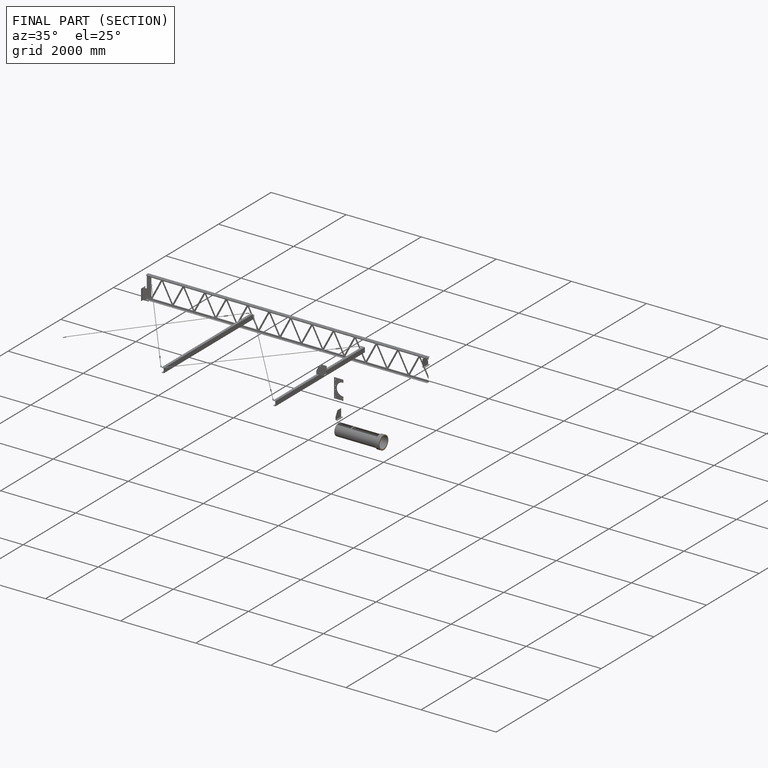
[diagram: finished part — half-section view (interior)]
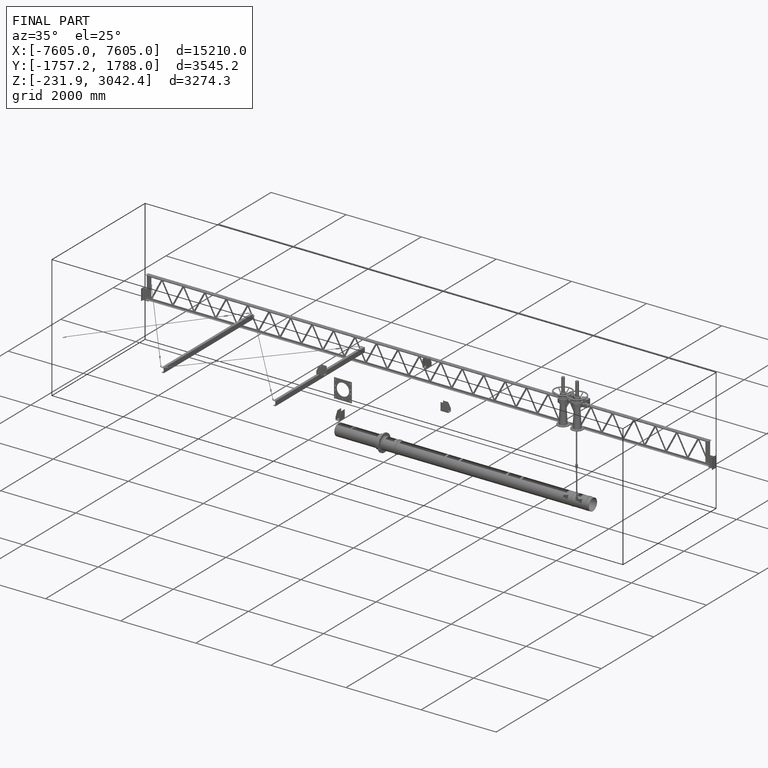
[diagram: finished part — iso view with bounding-box wireframe]
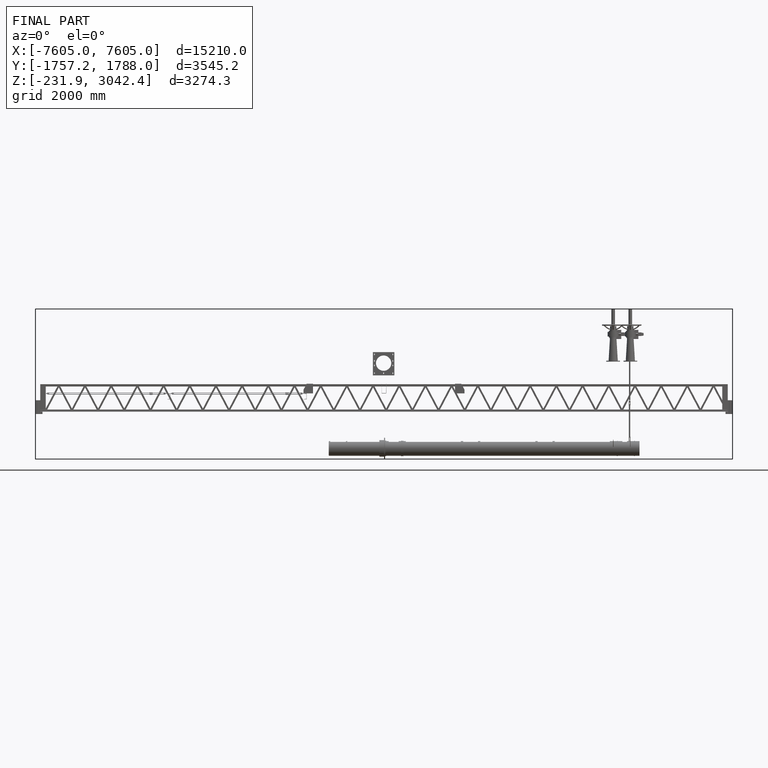
[diagram: finished part — front view with bounding-box wireframe]
